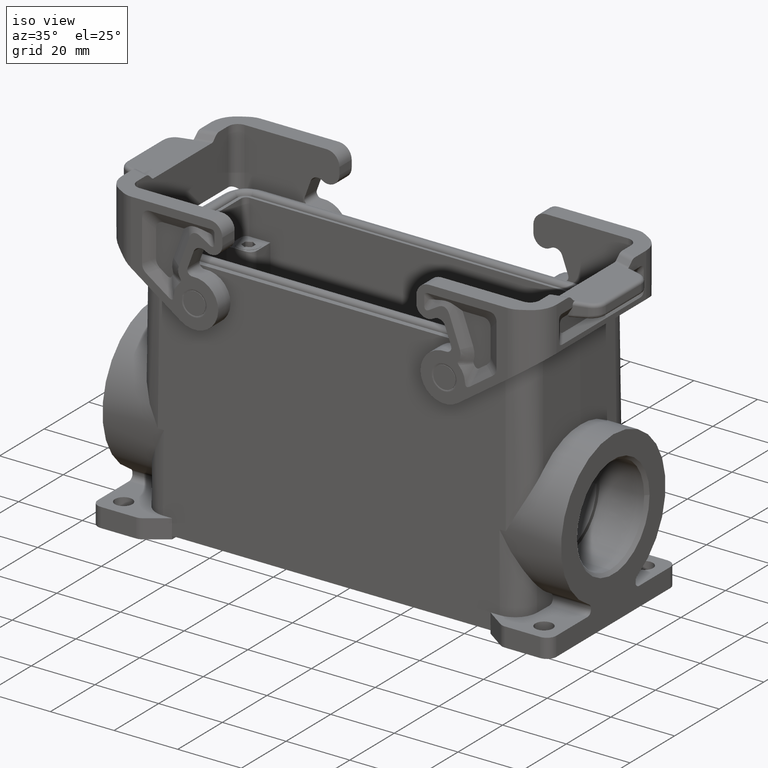
[diagram: clean part render]
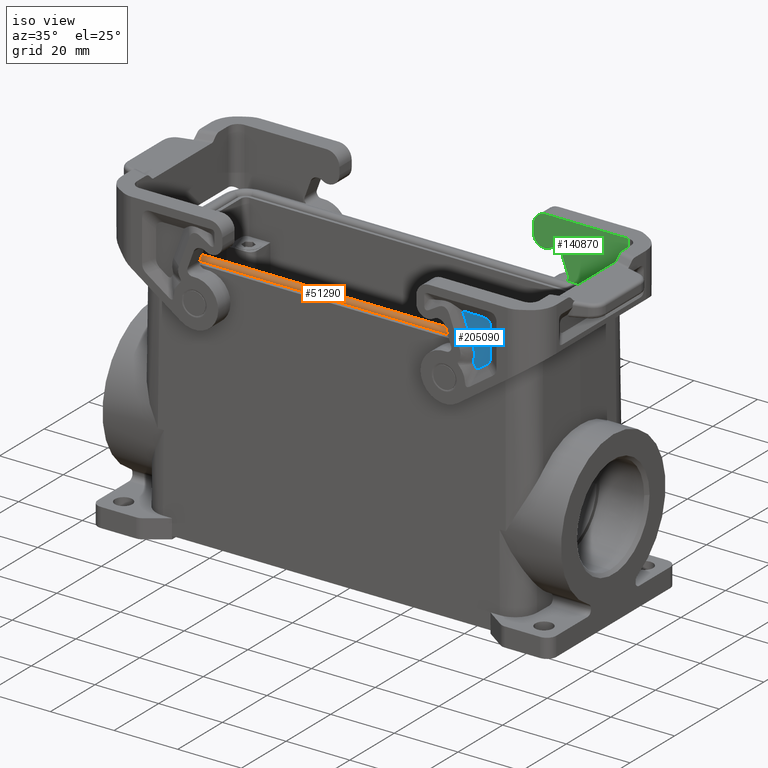
[diagram: same view with three faces highlighted in distinct colors, each labeled with its STEP entity id]
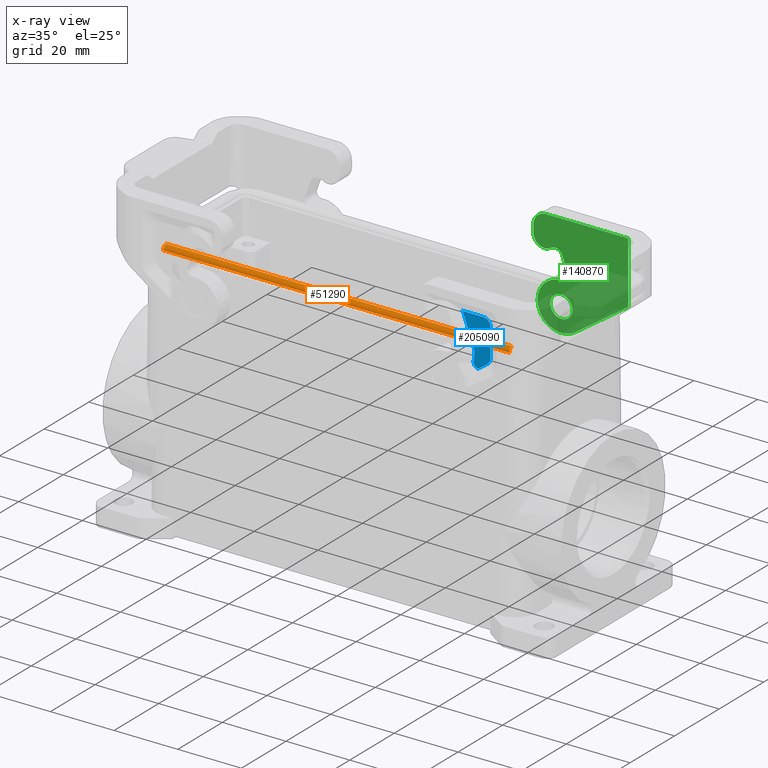
[diagram: x-ray of the same camera — body ghosted, the three highlighted faces saturated]
A machine part, iso view with three faces highlighted in distinct colors.
The next image is the same camera in x-ray (body ghosted, the three faces saturated) — at least one of them is partly hidden behind the body in this view.
Their STEP definitions:

[orange] entity #51290 — the highlighted cylindrical surface (edge-blend (fillet) strip) has radius 1.3 mm, axis along (1, 0, 0).
#28610=CARTESIAN_POINT('',(-80.6017367704239,23.600393,21.3818053607462)
);
#28620=VERTEX_POINT('',#28610);
#28650=CARTESIAN_POINT('',(101.662732982439,23.600393,21.3818053607462))
;
#28660=DIRECTION('',(1.,1.22464679914735E-16,0.));
#28670=VECTOR('',#28660,1.);
#28680=LINE('',#28650,#28670);
#28690=CARTESIAN_POINT('',(28.1087327353017,23.600393,21.3818053607462))
;
#28700=VERTEX_POINT('',#28690);
#28710=EDGE_CURVE('',#28620,#28700,#28680,.T.);
#48250=CARTESIAN_POINT('',(-80.6017367704239,24.950393,20.0827672550696)
);
#48260=VERTEX_POINT('',#48250);
#49270=CARTESIAN_POINT('',(28.1087327353017,24.950393,20.0827672550696))
;
#49280=VERTEX_POINT('',#49270);
#49310=CARTESIAN_POINT('',(101.662732982439,24.950393,20.0827672550696))
;
#49320=DIRECTION('',(1.,1.22464679914735E-16,0.));
#49330=VECTOR('',#49320,1.);
#49340=LINE('',#49310,#49330);
#49350=EDGE_CURVE('',#48260,#49280,#49340,.T.);
#49570=CARTESIAN_POINT('',(28.1087327353017,23.5936877964251,
21.381529943126));
#49580=CARTESIAN_POINT('',(28.1087327353017,24.3810726736339,
21.4159079092968));
#49590=CARTESIAN_POINT('',(28.1087327353017,24.950393,20.8709022621687))
;
#49600=CARTESIAN_POINT('',(28.1087327353017,24.950393,20.0827672550696))
;
#49610=(BOUNDED_CURVE() B_SPLINE_CURVE(3,(#49570,#49580,#49590,#49600),
.UNSPECIFIED.,.F.,.F.) B_SPLINE_CURVE_WITH_KNOTS((4,4),(0.,1.),
.UNSPECIFIED.) CURVE() GEOMETRIC_REPRESENTATION_ITEM() 
RATIONAL_B_SPLINE_CURVE((1.,0.79434203718818,0.79434203718818,1.)) 
REPRESENTATION_ITEM(''));
#49620=EDGE_CURVE('',#28700,#49280,#49610,.T.);
#51000=CARTESIAN_POINT('',(-80.6017367704239,23.5936877964251,
21.381529943126));
#51010=CARTESIAN_POINT('',(-80.6017367704239,24.3810726736339,
21.4159079092968));
#51020=CARTESIAN_POINT('',(-80.6017367704239,24.950393,20.8709022621687)
);
#51030=CARTESIAN_POINT('',(-80.6017367704239,24.950393,20.0827672550696)
);
#51040=(BOUNDED_CURVE() B_SPLINE_CURVE(3,(#51000,#51010,#51020,#51030),
.UNSPECIFIED.,.F.,.F.) B_SPLINE_CURVE_WITH_KNOTS((4,4),(0.,1.),
.UNSPECIFIED.) CURVE() GEOMETRIC_REPRESENTATION_ITEM() 
RATIONAL_B_SPLINE_CURVE((1.,0.79434203718818,0.79434203718818,1.)) 
REPRESENTATION_ITEM(''));
#51050=EDGE_CURVE('',#28620,#48260,#51040,.T.);
#51180=CARTESIAN_POINT('',(101.662732982439,23.650393,20.0827672550696))
;
#51190=DIRECTION('',(1.,1.22464679914735E-16,0.));
#51200=DIRECTION('',(0.,0.,1.));
#51210=AXIS2_PLACEMENT_3D('',#51180,#51190,#51200);
#51220=CYLINDRICAL_SURFACE('',#51210,1.3);
#51230=ORIENTED_EDGE('',*,*,#49620,.T.);
#51240=ORIENTED_EDGE('',*,*,#28710,.T.);
#51250=ORIENTED_EDGE('',*,*,#51050,.F.);
#51260=ORIENTED_EDGE('',*,*,#49350,.F.);
#51270=EDGE_LOOP('',(#51260,#51250,#51240,#51230));
#51280=FACE_OUTER_BOUND('',#51270,.T.);
#51290=ADVANCED_FACE('',(#51280),#51220,.T.);

[blue] entity #205090 — the highlighted planar face has unit normal (-0, -1, 0).
#187140=CARTESIAN_POINT('',(15.5938443089184,19.9084898675014,
29.8008727834341));
#187150=CARTESIAN_POINT('',(15.6503789052037,19.9121708330601,
29.7825039098034));
#187160=CARTESIAN_POINT('',(15.7065617675563,19.9162601629393,
29.763662419125));
#187170=CARTESIAN_POINT('',(15.8364997247724,19.9265704297103,
29.718891973554));
#187180=CARTESIAN_POINT('',(15.9099560919656,19.9330489657213,
29.6926719678815));
#187190=CARTESIAN_POINT('',(16.0571597904913,19.947094147338,
29.6385796512736));
#187200=CARTESIAN_POINT('',(16.1307760795123,19.9546677721177,
29.6107272897077));
#187210=CARTESIAN_POINT('',(16.2605784647074,19.9688137840444,
29.5604129132722));
#187220=CARTESIAN_POINT('',(16.3168127922858,19.9752113578485,
29.5382062990285));
#187230=CARTESIAN_POINT('',(16.4294400593955,19.9884867998585,
29.4930035389805));
#187240=CARTESIAN_POINT('',(16.4857748852946,19.9953631289619,
29.4700224160921));
#187250=CARTESIAN_POINT('',(16.5985449349942,20.0095344408756,
29.4233570090422));
#187260=CARTESIAN_POINT('',(16.6549492569245,20.0168295890853,
29.3996789574048));
#187270=CARTESIAN_POINT('',(16.7678439799504,20.0317880406663,
29.351683096087));
#187280=CARTESIAN_POINT('',(16.8243076406802,20.039450989125,
29.3273713038047));
#187290=CARTESIAN_POINT('',(16.9373186254284,20.0551019024929,
29.278160763381));
#187300=CARTESIAN_POINT('',(16.993842816066,20.0630892307593,
29.2532676158857));
#187310=CARTESIAN_POINT('',(17.1069558211753,20.0793487029835,
29.2029492313213));
#187320=CARTESIAN_POINT('',(17.1635247280813,20.0876199739821,
29.177529250399));
#187330=CARTESIAN_POINT('',(17.276719037452,20.1044131452302,
29.1262029048345));
#187340=CARTESIAN_POINT('',(17.3333272784265,20.1129340752719,
29.100301354865));
#187350=CARTESIAN_POINT('',(17.4465918455595,20.1301963957121,
29.0480535827174));
#187360=CARTESIAN_POINT('',(17.5032533382117,20.1389398907425,
29.0217023909422));
#187370=CARTESIAN_POINT('',(17.6114372246653,20.1558130073581,
28.9710195712663));
#187380=CARTESIAN_POINT('',(17.6630274816136,20.1639375342909,
28.9466882703352));
#187390=CARTESIAN_POINT('',(17.7254995058634,20.1738601705552,
28.9170437144651));
#187400=CARTESIAN_POINT('',(17.7364702410665,20.1756058551272,
28.9118310291946));
#187410=CARTESIAN_POINT('',(17.7584032931453,20.1791020522392,
28.9013963152634));
#187420=CARTESIAN_POINT('',(17.769365610021,20.1808525647793,
28.8961742866026));
#187430=CARTESIAN_POINT('',(17.7912818733948,20.1843582570011,
28.8857211128144));
#187440=CARTESIAN_POINT('',(17.8022358198931,20.1861134366829,
28.8804899676869));
#187450=CARTESIAN_POINT('',(17.8131899119192,20.1878715607514,
28.875252318539));
#187460=CARTESIAN_POINT('',(17.8131942186602,20.1878722519807,
28.8752502592895));
#187470=CARTESIAN_POINT('',(17.8131994280917,20.1878730880919,
28.8752477684212));
#187480=CARTESIAN_POINT('',(17.813200330783,20.1878732329734,
28.875247336803));
#187490=CARTESIAN_POINT('',(17.8132943955913,20.1878883303329,
28.8752023600913));
#187500=CARTESIAN_POINT('',(17.8133875574072,20.1879032829739,
28.875157814676));
#187510=CARTESIAN_POINT('',(17.815246140543,20.1882015931679,
28.8742691220033));
#187520=CARTESIAN_POINT('',(17.8187767674543,20.1887684250523,
28.8725805971));
#187530=CARTESIAN_POINT('',(17.822306962105,20.1893354897978,
28.8708916120356));
#187540=CARTESIAN_POINT('',(17.8276950688915,20.190201225643,
28.8683132207251));
#187550=CARTESIAN_POINT('',(17.8313177313689,20.1907836151282,
28.8665789537513));
#187560=CARTESIAN_POINT('',(17.8421852588012,20.1925316516359,
28.8613742847898));
#187570=CARTESIAN_POINT('',(17.8494287610663,20.1936980218259,
28.8579024463846));
#187580=CARTESIAN_POINT('',(17.8711581408452,20.1972006483527,
28.8474792209345));
#187590=CARTESIAN_POINT('',(17.8856385846184,20.1995397293618,
28.8405221829828));
#187600=CARTESIAN_POINT('',(18.0140643896087,20.2203268940845,
28.7787256673883));
#187610=CARTESIAN_POINT('',(18.1275523211527,20.2389904859733,
28.7234518811586));
#187620=CARTESIAN_POINT('',(18.2568272104585,20.2605073113662,
28.6598528586215));
#187630=CARTESIAN_POINT('',(18.2729319264447,20.2631924019214,
28.6519185297252));
#187640=CARTESIAN_POINT('',(18.297640703645,20.2673188278416,
28.6397282069309));
#187650=CARTESIAN_POINT('',(18.3062500237781,20.2687578748143,
28.6354775376597));
#187660=CARTESIAN_POINT('',(18.3593995352964,20.2776495090379,
28.6092167211262));
#187670=CARTESIAN_POINT('',(18.4038865818341,20.2851253555638,
28.5871519349499));
#187680=CARTESIAN_POINT('',(18.49276327054,20.3001211470866,
28.5429130925795));
#187690=CARTESIAN_POINT('',(18.5371529127082,20.3076410920834,
28.5207390363854));
#187700=CARTESIAN_POINT('',(18.6404417397926,20.3252020943445,
28.4689715405628));
#187710=CARTESIAN_POINT('',(18.6992969112978,20.3352565288284,
28.4393436029087));
#187720=CARTESIAN_POINT('',(18.7864515519312,20.3502083266881,
28.3952910906512));
#187730=CARTESIAN_POINT('',(18.8187715931372,20.3557642299053,
28.3789227338986));
#187740=CARTESIAN_POINT('',(18.8510798513524,20.3613301803997,
28.3625254300946));
#187750=CARTESIAN_POINT('',(18.8590119621885,20.3626970381948,
28.3584986333225));
#187760=CARTESIAN_POINT('',(18.8913063320302,20.368263371641,
28.3420999410744));
#187770=CARTESIAN_POINT('',(18.9235903115144,20.3738397105288,
28.3256721136427));
#187780=CARTESIAN_POINT('',(18.987360240158,20.3848740703229,
28.2931639360302));
#187790=CARTESIAN_POINT('',(19.0228087890803,20.3910213686418,
28.2750527632401));
#187800=CARTESIAN_POINT('',(19.0667589529649,20.3986583934988,
28.2525502157965));
#187810=CARTESIAN_POINT('',(19.0752814013654,20.4001400215987,
28.2481844790701));
#187820=CARTESIAN_POINT('',(19.0923238013464,20.4031042540955,
28.2394498776179));
#187830=CARTESIAN_POINT('',(19.1008437529272,20.4045868584923,
28.2350810128921));
#187840=CARTESIAN_POINT('',(19.1194874351745,20.4078326607962,
28.2255161334804));
#187850=CARTESIAN_POINT('',(19.1296106637828,20.4095960562272,
28.2203194781027));
#187860=CARTESIAN_POINT('',(19.2737549218414,20.4347185097777,
28.1462813658313));
#187870=CARTESIAN_POINT('',(19.4074416005962,20.4581853997086,
28.077082962662));
#187880=CARTESIAN_POINT('',(19.6748658948185,20.5053787549075,
27.937760691264));
#187890=CARTESIAN_POINT('',(19.8085694934442,20.5291004967704,
27.8676505523053));
#187900=CARTESIAN_POINT('',(20.0805379850057,20.5775473556577,
27.7242514341943));
#187910=CARTESIAN_POINT('',(20.2187640887585,20.6022729651842,
27.6509533201955));
#187920=CARTESIAN_POINT('',(20.4067969225491,20.6360127591314,
27.5507587230533));
#187930=CARTESIAN_POINT('',(20.5067303540463,20.65396463972,
27.4974148910444));
#187940=CARTESIAN_POINT('',(20.6065645679607,20.6719355673866,
27.4439461040074));
#187950=CARTESIAN_POINT('',(20.6733534710455,20.6839692054412,
27.4081191396911));
#187960=CARTESIAN_POINT('',(20.6902452025449,20.6870136128001,
27.3990532249853));
#187970=CARTESIAN_POINT('',(20.7285966058724,20.693927793425,
27.3784589721694));
#187980=CARTESIAN_POINT('',(20.7500547450716,20.6977978544996,
27.3669285387287));
#187990=CARTESIAN_POINT('',(20.9098915153111,20.7266355487633,
27.2809852632233));
#188000=CARTESIAN_POINT('',(21.0480983827638,20.7516295050146,
27.2063609116958));
#188010=CARTESIAN_POINT('',(21.3245066360075,20.8017046609869,
27.05657378712));
#188020=CARTESIAN_POINT('',(21.4626953853756,20.8267838181979,
26.9814166870613));
#188030=CARTESIAN_POINT('',(21.7390655735321,20.8770073172078,
26.8306306070855));
#188040=CARTESIAN_POINT('',(21.8772372055784,20.9021500416992,
26.755006092277));
#188050=CARTESIAN_POINT('',(22.1535644573142,20.9524824186973,
26.6033453312455));
#188060=CARTESIAN_POINT('',(22.2917124052393,20.9776707819536,
26.5273126430294));
#188070=CARTESIAN_POINT('',(22.5524606470288,21.0252476328063,
26.3834518554376));
#188080=CARTESIAN_POINT('',(22.6750754790004,21.0476349074594,
26.3156549401972));
#188090=CARTESIAN_POINT('',(22.7976255203723,21.0700214499229,
26.2477608642993));
#188100=CARTESIAN_POINT('',(15.5283387030263,20.4686983704234,
29.5411820310135));
#188110=CARTESIAN_POINT('',(15.5819156428012,20.4681406856572,
29.527588131611));
#188120=CARTESIAN_POINT('',(15.6354087840301,20.4679674774306,
29.513441966624));
#188130=CARTESIAN_POINT('',(15.7597873238098,20.4683500378506,
29.4793213799239));
#188140=CARTESIAN_POINT('',(15.8306384879911,20.4691667853763,
29.4589495564007));
#188150=CARTESIAN_POINT('',(15.9732242545007,20.4718956933648,
29.4162571853452));
#188160=CARTESIAN_POINT('',(16.0450023966126,20.4738143722338,
29.3938944865709));
#188170=CARTESIAN_POINT('',(16.1718538815342,20.4780856114718,
29.3529922068095));
#188180=CARTESIAN_POINT('',(16.2270795230862,20.4802287486896,
29.3347195165118));
#188190=CARTESIAN_POINT('',(16.3378636914403,20.48506804205,
29.2972040970354));
#188200=CARTESIAN_POINT('',(16.3934486423567,20.4877644775747,
29.2779440392859));
#188210=CARTESIAN_POINT('',(16.5049207928714,20.4936671516956,
29.2385149316162));
#188220=CARTESIAN_POINT('',(16.5608214909911,20.4968757718404,
29.2183335752954));
#188230=CARTESIAN_POINT('',(16.6728749428573,20.5037655876941,
29.1771286281072));
#188240=CARTESIAN_POINT('',(16.7290400901813,20.507448860728,
29.1560941656928));
#188250=CARTESIAN_POINT('',(16.8415894269448,20.5152531573229,
29.1132426739741));
#188260=CARTESIAN_POINT('',(16.8979847451935,20.5193760742062,
29.0914159995278));
#188270=CARTESIAN_POINT('',(17.0109495520004,20.5280257169521,
29.0470426932412));
#188280=CARTESIAN_POINT('',(17.0675289797623,20.5325540517104,
29.0244877204546));
#188290=CARTESIAN_POINT('',(17.1808320811251,20.5419832814188,
28.9787130521453));
#188300=CARTESIAN_POINT('',(17.2375645105106,20.5468855959009,
28.9554860976759));
#188310=CARTESIAN_POINT('',(17.3511469947114,20.5570336572326,
28.9084191710042));
#188320=CARTESIAN_POINT('',(17.4079952086494,20.5622816600067,
28.8845767884887));
#188330=CARTESIAN_POINT('',(17.5167760072845,20.5726105411839,
28.8384523319967));
#188340=CARTESIAN_POINT('',(17.5686434212511,20.5776646768907,
28.8162403335298));
#188350=CARTESIAN_POINT('',(17.6314859458224,20.5839326192796,
28.7890806029693));
#188360=CARTESIAN_POINT('',(17.642517424068,20.5850383082427,
28.7843036672827));
#188370=CARTESIAN_POINT('',(17.6645729305177,20.5872595474995,
28.7747347772355));
#188380=CARTESIAN_POINT('',(17.6755969934144,20.5883750988614,
28.7699428119955));
#188390=CARTESIAN_POINT('',(17.697637996489,20.590615887057,
28.7603440360142));
#188400=CARTESIAN_POINT('',(17.7086549707337,20.5917411250063,
28.755537214485));
#188410=CARTESIAN_POINT('',(17.7196757274623,20.5928718547318,
28.7507199177964));
#188420=CARTESIAN_POINT('',(17.7196800599316,20.592872299244,
28.7507180240239));
#188430=CARTESIAN_POINT('',(17.7196853008713,20.5928728369663,
28.750715733147));
#188440=CARTESIAN_POINT('',(17.7196862090223,20.592872930143,
28.7507153361834));
#188450=CARTESIAN_POINT('',(17.7197808461655,20.5928826399569,
28.7506739691548));
#188460=CARTESIAN_POINT('',(17.7198745764236,20.5928922572052,
28.7506329983895));
#188470=CARTESIAN_POINT('',(17.7217445306461,20.5930841344484,
28.7498156126686));
#188480=CARTESIAN_POINT('',(17.7252978612935,20.5934490856806,
28.7482622747406));
#188490=CARTESIAN_POINT('',(17.7288509006921,20.5938144614918,
28.7467082111003));
#188500=CARTESIAN_POINT('',(17.7342727843611,20.5943723791767,
28.7443355438022));
#188510=CARTESIAN_POINT('',(17.7379166506698,20.5947478337274,
28.7427393105889));
#188520=CARTESIAN_POINT('',(17.7488485537946,20.5958759857913,
28.7379483588785));
#188530=CARTESIAN_POINT('',(17.7561359870265,20.5966303786185,
28.7347517854466));
#188540=CARTESIAN_POINT('',(17.7780058611775,20.5989007621367,
28.7251469557809));
#188550=CARTESIAN_POINT('',(17.792591548882,20.6004235136799,
28.7187254814716));
#188560=CARTESIAN_POINT('',(17.9219585142873,20.6140051227747,
28.6616391252885));
#188570=CARTESIAN_POINT('',(18.0363515691301,20.6265433951559,
28.6102417442966));
#188580=CARTESIAN_POINT('',(18.1665147987152,20.6413197820418,
28.5508670399836));
#188590=CARTESIAN_POINT('',(18.1827287260392,20.6431694983533,
28.5434550767893));
#188600=CARTESIAN_POINT('',(18.2076285874059,20.6460234106336,
28.5320486353426));
#188610=CARTESIAN_POINT('',(18.2163088755415,20.6470207831645,
28.5280678193428));
#188620=CARTESIAN_POINT('',(18.2699019779384,20.653194075959,
28.5034627631053));
#188630=CARTESIAN_POINT('',(18.3147840503185,20.6584307562748,
28.4827397382569));
#188640=CARTESIAN_POINT('',(18.4044061089809,20.6690137184992,
28.4411331451722));
#188650=CARTESIAN_POINT('',(18.4491460952634,20.6743600004079,
28.4202495769359));
#188660=CARTESIAN_POINT('',(18.5532569281294,20.6869372295449,
28.3714097953021));
#188670=CARTESIAN_POINT('',(18.6125974145805,20.6942094110537,
28.3433876859224));
#188680=CARTESIAN_POINT('',(18.700435229025,20.705116276387,
28.3016721569148));
#188690=CARTESIAN_POINT('',(18.7330038621724,20.7091858788368,
28.2861624225316));
#188700=CARTESIAN_POINT('',(18.7655827572054,20.7132841192267,
28.2705883946325));
#188710=CARTESIAN_POINT('',(18.7735838089171,20.7142914230582,
28.2667617318775));
#188720=CARTESIAN_POINT('',(18.8061687116858,20.7183970738542,
28.2511698681627));
#188730=CARTESIAN_POINT('',(18.8387601881877,20.7225306375761,
28.2355173469692));
#188740=CARTESIAN_POINT('',(18.9031074160751,20.7307386443372,
28.2045561676367));
#188750=CARTESIAN_POINT('',(18.9388448927083,20.7353299764853,
28.1873206441474));
#188760=CARTESIAN_POINT('',(18.9831718520708,20.7410622812837,
28.1658606841823));
#188770=CARTESIAN_POINT('',(18.9917682327732,20.7421757018807,
28.1616951063504));
#188780=CARTESIAN_POINT('',(19.0089592988325,20.7444057935867,
28.1533576022568));
#188790=CARTESIAN_POINT('',(19.0175539841896,20.7455224646957,
28.149185675995));
#188800=CARTESIAN_POINT('',(19.036360850943,20.7479697537081,
28.1400500924342));
#188810=CARTESIAN_POINT('',(19.046572459736,20.7493010122703,
28.1350854712793));
#188820=CARTESIAN_POINT('',(19.1919730310951,20.7682905593734,
28.06433353931));
#188830=CARTESIAN_POINT('',(19.3268430657012,20.786324524523,
27.9979433071429));
#188840=CARTESIAN_POINT('',(19.5965791774993,20.8230976867758,
27.8638731672116));
#188850=CARTESIAN_POINT('',(19.7314430573826,20.8418394284254,
27.7961891465623));
#188860=CARTESIAN_POINT('',(20.0056864721446,20.8805613758197,
27.6574223272066));
#188870=CARTESIAN_POINT('',(20.1450469684719,20.9005617057374,
27.5863068739016));
#188880=CARTESIAN_POINT('',(20.3346138694732,20.9281400318683,
27.4888732713977));
#188890=CARTESIAN_POINT('',(20.4353660058674,20.942869386206,
27.436954090535));
#188900=CARTESIAN_POINT('',(20.5359569141189,20.9577109874922,
27.3848623540697));
#188910=CARTESIAN_POINT('',(20.6032593640346,20.9676840271859,
27.34992825909));
#188920=CARTESIAN_POINT('',(20.6202816050284,20.9702101044138,
27.3410857305868));
#188930=CARTESIAN_POINT('',(20.6589275654445,20.975953302686,
27.3209948821429));
#188940=CARTESIAN_POINT('',(20.6805501444145,20.9791724707729,
27.3097429699058));
#188950=CARTESIAN_POINT('',(20.8415385063125,21.0031826606992,
27.2258882991683));
#188960=CARTESIAN_POINT('',(20.9807792955514,21.0241850262546,
27.1529144982437));
#188970=CARTESIAN_POINT('',(21.2591748145334,21.0665822956481,
27.006237300619));
#188980=CARTESIAN_POINT('',(21.3983345292889,21.0879782953127,
26.9325296814096));
#188990=CARTESIAN_POINT('',(21.6765719090556,21.1311092955702,
26.7844795202336));
#189000=CARTESIAN_POINT('',(21.8156532488153,21.1528451333809,
26.710133818623));
#189010=CARTESIAN_POINT('',(22.0937309661757,21.1966100266266,
26.5608909394831));
#189020=CARTESIAN_POINT('',(22.2327300930917,21.2186397119534,
26.4859913999684));
#189030=CARTESIAN_POINT('',(22.4950341065253,21.2604651411743,
26.3441512322966));
#189040=CARTESIAN_POINT('',(22.6183574585354,21.2802354786959,
26.2772560328704));
#189050=CARTESIAN_POINT('',(22.7416227676208,21.3000910348764,
26.210205153208));
#189060=CARTESIAN_POINT('',(15.5376359067284,21.0895589935669,
29.5411758618925));
#189070=CARTESIAN_POINT('',(15.5883991158208,21.0835374940161,
29.5275781989544));
#189080=CARTESIAN_POINT('',(15.6392515062593,21.0779055868836,
29.5134375226708));
#189090=CARTESIAN_POINT('',(15.7578944561268,21.0656644397853,
29.4793273070433));
#189100=CARTESIAN_POINT('',(15.8258320143774,21.0593404323747,
29.4589445445579));
#189110=CARTESIAN_POINT('',(15.9629814231807,21.0478923870809,
29.416262012101));
#189120=CARTESIAN_POINT('',(16.0323346864019,21.0427758847585,
29.3938865921335));
#189130=CARTESIAN_POINT('',(16.1552014182364,21.0348354640552,
29.3529981372959));
#189140=CARTESIAN_POINT('',(16.2088569719369,21.0317404593445,
29.3347180492947));
#189150=CARTESIAN_POINT('',(16.3166781301201,21.0262364880016,
29.297205504053));
#189160=CARTESIAN_POINT('',(16.3709029648401,21.0238292195729,
29.2779428772018));
#189170=CARTESIAN_POINT('',(16.4798317238217,21.0196741904686,
29.2385160723878));
#189180=CARTESIAN_POINT('',(16.5345672149089,21.0179306939671,
29.2183326419544));
#189190=CARTESIAN_POINT('',(16.6444482820145,21.0150776728051,
29.1771295448173));
#189200=CARTESIAN_POINT('',(16.6996202851822,21.0139720460327,
29.1560934222996));
#189210=CARTESIAN_POINT('',(16.8103235454144,21.0123659433092,
29.1132434046398));
#189220=CARTESIAN_POINT('',(16.8658768117836,21.011869089284,
29.0914154090456));
#189230=CARTESIAN_POINT('',(16.9772816077743,21.0114504171317,
29.047043273884));
#189240=CARTESIAN_POINT('',(17.0331514577298,21.0115317455773,
29.0244872540224));
#189250=CARTESIAN_POINT('',(17.145144640421,21.0122383053242,
28.9787135110503));
#189260=CARTESIAN_POINT('',(17.201283186363,21.0128663269356,
28.9554857302559));
#189270=CARTESIAN_POINT('',(17.3137737007273,21.0146352296475,
28.9084195467231));
#189280=CARTESIAN_POINT('',(17.3701242269748,21.0157795244461,
28.8845790262431));
#189290=CARTESIAN_POINT('',(17.4780516037808,21.0184237992494,
28.8384503086452));
#189300=CARTESIAN_POINT('',(17.5295460689552,21.0198860970469,
28.8162378328194));
#189310=CARTESIAN_POINT('',(17.5919744680977,21.0218862312844,
28.7890783646126));
#189320=CARTESIAN_POINT('',(17.6029346629401,21.0222458892895,
28.7843015064541));
#189330=CARTESIAN_POINT('',(17.6248504205958,21.022981806395,
28.7747328176861));
#189340=CARTESIAN_POINT('',(17.6358060172486,21.0233580628012,
28.7699409761868));
#189350=CARTESIAN_POINT('',(17.6577128457666,21.0241269158155,
28.7603424772117));
#189360=CARTESIAN_POINT('',(17.6686641108789,21.0245195098704,
28.7555358089418));
#189370=CARTESIAN_POINT('',(17.6796204655171,21.0249204051777,
28.7507186720416));
#189380=CARTESIAN_POINT('',(17.6796247726689,21.0249205627786,
28.7507167783319));
#189390=CARTESIAN_POINT('',(17.6796299829825,21.0249207534281,
28.750714487531));
#189400=CARTESIAN_POINT('',(17.6796308858266,21.0249207864639,
28.7507140905806));
#189410=CARTESIAN_POINT('',(17.6797249699452,21.0249242290874,
28.7506727249241));
#189420=CARTESIAN_POINT('',(17.6798181518795,21.0249276392826,
28.750631755519));
#189430=CARTESIAN_POINT('',(17.6816771555631,21.0249956852176,
28.7498143969627));
#189440=CARTESIAN_POINT('',(17.6852092719321,21.0251253926011,
28.7482611116596));
#189450=CARTESIAN_POINT('',(17.6887411853165,21.0252561064784,
28.7467071304032));
#189460=CARTESIAN_POINT('',(17.6941316090561,21.0254561468919,
28.7443345798981));
#189470=CARTESIAN_POINT('',(17.6977554064493,21.025591378548,
28.7427384128567));
#189480=CARTESIAN_POINT('',(17.7086264922327,21.0259997385031,
28.737947643398));
#189490=CARTESIAN_POINT('',(17.7158725712919,21.02627549876,
28.7347511697614));
#189500=CARTESIAN_POINT('',(17.7376206976439,21.0271139976168,
28.725146762096));
#189510=CARTESIAN_POINT('',(17.7521283324002,21.0276877970363,
28.7187257326197));
#189520=CARTESIAN_POINT('',(17.8808222132051,21.0328987532666,
28.6616427045827));
#189530=CARTESIAN_POINT('',(17.994754293891,21.0383569375921,
28.6102439523267));
#189540=CARTESIAN_POINT('',(18.1245061413366,21.0453999044374,
28.5508682121901));
#189550=CARTESIAN_POINT('',(18.1406708401941,21.0462920485824,
28.5434561293118));
#189560=CARTESIAN_POINT('',(18.1654978992271,21.0476855364164,
28.532049672447));
#189570=CARTESIAN_POINT('',(18.1741533293485,21.0481756806436,
28.5280688824505));
#189580=CARTESIAN_POINT('',(18.2275966063382,21.0512276648738,
28.5034639748477));
#189590=CARTESIAN_POINT('',(18.272369041511,21.0538953874995,
28.4827410228041));
#189600=CARTESIAN_POINT('',(18.3617904283682,21.059430496732,
28.4411347297975));
#189610=CARTESIAN_POINT('',(18.4064393800526,21.0622978833388,
28.4202513888346));
#189620=CARTESIAN_POINT('',(18.5103660995017,21.0692014776062,
28.3714112405969));
#189630=CARTESIAN_POINT('',(18.5696226929973,21.0733117998201,
28.3433882425017));
#189640=CARTESIAN_POINT('',(18.6573874004736,21.0796350859461,
28.301671740645));
#189650=CARTESIAN_POINT('',(18.6899380911698,21.0820225354053,
28.2861617070306));
#189660=CARTESIAN_POINT('',(18.7224885325153,21.0844599578927,
28.2705876603861));
#189670=CARTESIAN_POINT('',(18.7304821913024,21.0850600490425,
28.2667610023702));
#189680=CARTESIAN_POINT('',(18.763035335899,21.0875100146083,
28.2511691960188));
#189690=CARTESIAN_POINT('',(18.795586625344,21.090009088855,
28.2355169697459));
#189700=CARTESIAN_POINT('',(18.8599019633883,21.0950197694934,
28.204555888661));
#189710=CARTESIAN_POINT('',(18.8956548631145,21.0978561211845,
28.187320081766));
#189720=CARTESIAN_POINT('',(18.9399843257223,21.1014408298188,
28.1658604122156));
#189730=CARTESIAN_POINT('',(18.94858041587,21.1021391270029,
28.1616949206649));
#189740=CARTESIAN_POINT('',(18.9657703793252,21.1035417230723,
28.1533574910147));
#189750=CARTESIAN_POINT('',(18.9743642526327,21.1042460219576,
28.1491855529152));
#189760=CARTESIAN_POINT('',(18.9931701550302,21.1057937143866,
28.1400499929936));
#189770=CARTESIAN_POINT('',(19.0033817647815,21.1066382955529,
28.1350854166577));
#189780=CARTESIAN_POINT('',(19.1487874299011,21.1187234682358,
28.0643340493141));
#189790=CARTESIAN_POINT('',(19.2837247445331,21.1306646977753,
27.9979434353047));
#189800=CARTESIAN_POINT('',(19.5536824874755,21.1557974139441,
27.863873030904));
#189810=CARTESIAN_POINT('',(19.6887010675624,21.1689937355896,
27.7961891296415));
#189820=CARTESIAN_POINT('',(19.9633196644435,21.1969286644661,
27.6574224066868));
#189830=CARTESIAN_POINT('',(20.1029028795229,21.2117064226904,
27.586306924924));
#189840=CARTESIAN_POINT('',(20.2928013291292,21.2324886633042,
27.4888733057227));
#189850=CARTESIAN_POINT('',(20.3937351932169,21.2436653909985,
27.4369541202309));
#189860=CARTESIAN_POINT('',(20.4945171476184,21.2550739279817,
27.3848623564793));
#189870=CARTESIAN_POINT('',(20.5619501122196,21.2627862659633,
27.3499282526363));
#189880=CARTESIAN_POINT('',(20.5790055937756,21.2647436698265,
27.3410857226962));
#189890=CARTESIAN_POINT('',(20.6177275102336,21.2692027336814,
27.3209948741414));
#189900=CARTESIAN_POINT('',(20.6393929348471,21.2717083558536,
27.3097429640833));
#189910=CARTESIAN_POINT('',(20.8007026590266,21.2904418655021,
27.2258883351646));
#189920=CARTESIAN_POINT('',(20.9402348590345,21.3070816532107,
27.1529144806442));
#189930=CARTESIAN_POINT('',(21.2192284107356,21.3411108234687,
27.0062373181662));
#189940=CARTESIAN_POINT('',(21.3586948807704,21.358502026849,
26.9325296738362));
#189950=CARTESIAN_POINT('',(21.6375531577504,21.3939406245053,
26.7844795278982));
#189960=CARTESIAN_POINT('',(21.7769486712255,21.4119894058342,
26.7101338161465));
#189970=CARTESIAN_POINT('',(22.0556565124738,21.4486630162937,
26.5608909420939));
#189980=CARTESIAN_POINT('',(22.1949715737564,21.4672888817528,
26.4859913999714));
#189990=CARTESIAN_POINT('',(22.4578698908284,21.5029277271937,
26.3441512324294));
#190000=CARTESIAN_POINT('',(22.5814718354563,21.5198885495717,
26.2772560337256));
#190010=CARTESIAN_POINT('',(22.7050138257546,21.5370256936231,
26.2102051536545));
#190020=CARTESIAN_POINT('',(15.6199191275575,21.6475662257597,
29.8008494488392));
#190030=CARTESIAN_POINT('',(15.668602418478,21.6379431461744,
29.7824683487128));
#190040=CARTESIAN_POINT('',(15.7173507181846,21.6286724410115,
29.7636535265236));
#190050=CARTESIAN_POINT('',(15.8312033779737,21.6079029786424,
29.7189037944294));
#190060=CARTESIAN_POINT('',(15.896410267987,21.5966763262221,
29.6926609813371));
#190070=CARTESIAN_POINT('',(16.0282259668394,21.5753360518497,
29.6385908360181));
#190080=CARTESIAN_POINT('',(16.0949464723123,21.5652284636108,
29.6106985505796));
#190090=CARTESIAN_POINT('',(16.2133207042628,21.5484926372533,
29.5604351276389));
#190100=CARTESIAN_POINT('',(16.2650629610129,21.5415797579134,
29.5382022672357));
#190110=CARTESIAN_POINT('',(16.3691584131688,21.5284549015538,
29.4930076142482));
#190120=CARTESIAN_POINT('',(16.4215626148701,21.5222444771073,
29.4700187859851));
#190130=CARTESIAN_POINT('',(16.5269552555617,21.5105187512524,
29.4233606744015));
#190140=CARTESIAN_POINT('',(16.5799696841254,21.5050078817064,
29.3996757140493));
#190150=CARTESIAN_POINT('',(16.6865159819476,21.4946730883251,
29.3516863676421));
#190160=CARTESIAN_POINT('',(16.7400703544651,21.4898533461134,
29.3273684289857));
#190170=CARTESIAN_POINT('',(16.8476450334932,21.4808851254048,
29.2781636610974));
#190180=CARTESIAN_POINT('',(16.9016847644401,21.4767406511316,
29.253265068695));
#190190=CARTESIAN_POINT('',(17.0101671119145,21.4691040917426,
29.2029517963674));
#190200=CARTESIAN_POINT('',(17.0646264802133,21.4656155754223,
29.1775270050375));
#190210=CARTESIAN_POINT('',(17.1738996120884,21.4592677191349,
29.1262051643693));
#190220=CARTESIAN_POINT('',(17.2287278109778,21.4564116254353,
29.1002993785647));
#190230=CARTESIAN_POINT('',(17.3386940152286,21.4513032932153,
29.0480555702199));
#190240=CARTESIAN_POINT('',(17.3938250196595,21.4490546597102,
29.0217193354058));
#190250=CARTESIAN_POINT('',(17.4994554959527,21.4453084605546,
28.9710040699887));
#190260=CARTESIAN_POINT('',(17.5499088428498,21.4437644807115,
28.9466691194476));
#190270=CARTESIAN_POINT('',(17.6111039208113,21.4421729778487,
28.9170265574337));
#190280=CARTESIAN_POINT('',(17.6218541531246,21.4419039260569,
28.9118144628539));
#190290=CARTESIAN_POINT('',(17.6433538816503,21.4413866374773,
28.9013812841628));
#190300=CARTESIAN_POINT('',(17.6541033778626,21.4411384006895,
28.8961602000516));
#190310=CARTESIAN_POINT('',(17.6756017070729,21.4406624762144,
28.8857091422529));
#190320=CARTESIAN_POINT('',(17.6863505400709,21.4404347885271,
28.8804791685655));
#190330=CARTESIAN_POINT('',(17.6971033054925,21.4402171568737,
28.8752427412991));
#190340=CARTESIAN_POINT('',(17.6971075330799,21.4402170713106,
28.87524068253));
#190350=CARTESIAN_POINT('',(17.6971126467681,21.4402169678154,
28.8752381922427));
#190360=CARTESIAN_POINT('',(17.697113532869,21.4402169498818,
28.8752377607252));
#190370=CARTESIAN_POINT('',(17.6972058688796,21.4402150811208,
28.8751927945065));
#190380=CARTESIAN_POINT('',(17.697297318768,21.4402132310276,
28.8751482594871));
#190390=CARTESIAN_POINT('',(17.6991217543334,21.4401763360945,
28.8742597742841));
#190400=CARTESIAN_POINT('',(17.7025877104017,21.4401067721485,
28.8725716460894));
#190410=CARTESIAN_POINT('',(17.7060536364237,21.4400382603771,
28.870883061805));
#190420=CARTESIAN_POINT('',(17.7113439516618,21.4399344863435,
28.8683052845341));
#190430=CARTESIAN_POINT('',(17.7149012802386,21.4398658117917,
28.8665714336258));
#190440=CARTESIAN_POINT('',(17.7255740629752,21.4396630750917,
28.8613680155639));
#190450=CARTESIAN_POINT('',(17.7326894280419,21.4395323178282,
28.8578970145924));
#190460=CARTESIAN_POINT('',(17.754039425925,21.4391530736632,
28.8474762570714));
#190470=CARTESIAN_POINT('',(17.7682737338624,21.4389176998588,
28.8405208047194));
#190480=CARTESIAN_POINT('',(17.8945761857348,21.4369815239997,
28.7787365188947));
#190490=CARTESIAN_POINT('',(18.0066382230651,21.4363286247875,
28.7234435552247));
#190500=CARTESIAN_POINT('',(18.1345561020682,21.4366512525864,
28.659854044091));
#190510=CARTESIAN_POINT('',(18.1504985928256,21.4367104271071,
28.6519204360425));
#190520=CARTESIAN_POINT('',(18.1749682405393,21.4368298611381,
28.6397306999327));
#190530=CARTESIAN_POINT('',(18.1834960619726,21.4368768188408,
28.6354801382205));
#190540=CARTESIAN_POINT('',(18.2361532503701,21.4371994009165,
28.609219506546));
#190550=CARTESIAN_POINT('',(18.2802750981936,21.437611212432,
28.5871527965507));
#190560=CARTESIAN_POINT('',(18.3684961699715,21.4387038333089,
28.5429112952758));
#190570=CARTESIAN_POINT('',(18.4125953939259,21.4393846426703,
28.5207365039963));
#190580=CARTESIAN_POINT('',(18.515271595128,21.4412673267522,
28.468974906316));
#190590=CARTESIAN_POINT('',(18.5738481471143,21.4425671668909,
28.4393448121507));
#190600=CARTESIAN_POINT('',(18.6606657650349,21.4448076291545,
28.3952896157002));
#190610=CARTESIAN_POINT('',(18.69288351758,21.445695351216,
28.3789157261774));
#190620=CARTESIAN_POINT('',(18.7250851222885,21.4466446744655,
28.3625224751425));
#190630=CARTESIAN_POINT('',(18.7329932574215,21.446879658297,
28.3584957561302));
#190640=CARTESIAN_POINT('',(18.765198548295,21.447844116062,
28.3420938715261));
#190650=CARTESIAN_POINT('',(18.7973865732038,21.4488694871752,
28.3256735095965));
#190660=CARTESIAN_POINT('',(18.8610232558217,21.4510005065613,
28.2931633510337));
#190670=CARTESIAN_POINT('',(18.8964137139837,21.4522578429696,
28.2750510996155));
#190680=CARTESIAN_POINT('',(18.9403075552343,21.4539033255407,
28.2525483909038));
#190690=CARTESIAN_POINT('',(18.9488198150858,21.4542264472651,
28.248182677817));
#190700=CARTESIAN_POINT('',(18.9658432143964,21.454880600905,
28.2394482592542));
#190710=CARTESIAN_POINT('',(18.9743543538555,21.4552116328204,
28.2350795537782));
#190720=CARTESIAN_POINT('',(18.9929801547695,21.4559446802475,
28.2255151994947));
#190730=CARTESIAN_POINT('',(19.0030945789742,21.4563483111355,
28.2203189432939));
#190740=CARTESIAN_POINT('',(19.1471252493315,21.4621743277126,
28.146288447398));
#190750=CARTESIAN_POINT('',(19.2809365123567,21.4685507668954,
28.0770776318825));
#190760=CARTESIAN_POINT('',(19.5488100045354,21.4829864540075,
27.9377660434822));
#190770=CARTESIAN_POINT('',(19.6829007692915,21.4910541574017,
27.8676472609769));
#190780=CARTESIAN_POINT('',(19.9558011261624,21.5089628761723,
27.7242548481928));
#190790=CARTESIAN_POINT('',(20.0946214359118,21.5188602655431,
27.6509498904689));
#190800=CARTESIAN_POINT('',(20.2835281281438,21.5332602926661,
27.5507599652027));
#190810=CARTESIAN_POINT('',(20.383948455704,21.5410948179147,
27.4974161340719));
#190820=CARTESIAN_POINT('',(20.4843030108047,21.5492669899445,
27.443945818272));
#190830=CARTESIAN_POINT('',(20.5514476936125,21.5548439971911,
27.4081184691195));
#190840=CARTESIAN_POINT('',(20.5684300635955,21.5562639025219,
27.3990525117445));
#190850=CARTESIAN_POINT('',(20.6069885046425,21.5595086788558,
27.378458361941));
#190860=CARTESIAN_POINT('',(20.6285633732689,21.5613391038116,
27.3669281283078));
#190870=CARTESIAN_POINT('',(20.7892746207762,21.5750821472681,
27.2809879104816));
#190880=CARTESIAN_POINT('',(20.9282957867443,21.5875748852526,
27.2063588594867));
#190890=CARTESIAN_POINT('',(21.2063615682935,21.6136233085509,
27.0565758433236));
#190900=CARTESIAN_POINT('',(21.3454168588655,21.6271821970298,
26.9814150791333));
#190910=CARTESIAN_POINT('',(21.6235300602663,21.655238898603,
26.8306322176979));
#190920=CARTESIAN_POINT('',(21.7625962511401,21.6697392284752,
26.7550048214562));
#190930=CARTESIAN_POINT('',(22.0407089758689,21.6995714383277,
26.603346603829));
#190940=CARTESIAN_POINT('',(22.1797620058043,21.714905265649,
26.5273116311045));
#190950=CARTESIAN_POINT('',(22.4422062315834,21.7445469659898,
26.3834527547368));
#190960=CARTESIAN_POINT('',(22.5656222969479,21.7587796189776,
26.3156545026463));
#190970=CARTESIAN_POINT('',(22.6889667053383,21.7732691734584,
26.2477606827695));
#190980=(BOUNDED_SURFACE() B_SPLINE_SURFACE(3,3,((#187140,#188100,
#189060,#190020),(#187150,#188110,#189070,#190030),(#187160,#188120,
#189080,#190040),(#187170,#188130,#189090,#190050),(#187180,#188140,
#189100,#190060),(#187190,#188150,#189110,#190070),(#187200,#188160,
#189120,#190080),(#187210,#188170,#189130,#190090),(#187220,#188180,
#189140,#190100),(#187230,#188190,#189150,#190110),(#187240,#188200,
#189160,#190120),(#187250,#188210,#189170,#190130),(#187260,#188220,
#189180,#190140),(#187270,#188230,#189190,#190150),(#187280,#188240,
#189200,#190160),(#187290,#188250,#189210,#190170),(#187300,#188260,
#189220,#190180),(#187310,#188270,#189230,#190190),(#187320,#188280,
#189240,#190200),(#187330,#188290,#189250,#190210),(#187340,#188300,
#189260,#190220),(#187350,#188310,#189270,#190230),(#187360,#188320,
#189280,#190240),(#187370,#188330,#189290,#190250),(#187380,#188340,
#189300,#190260),(#187390,#188350,#189310,#190270),(#187400,#188360,
#189320,#190280),(#187410,#188370,#189330,#190290),(#187420,#188380,
#189340,#190300),(#187430,#188390,#189350,#190310),(#187440,#188400,
#189360,#190320),(#187450,#188410,#189370,#190330),(#187460,#188420,
#189380,#190340),(#187470,#188430,#189390,#190350),(#187480,#188440,
#189400,#190360),(#187490,#188450,#189410,#190370),(#187500,#188460,
#189420,#190380),(#187510,#188470,#189430,#190390),(#187520,#188480,
#189440,#190400),(#187530,#188490,#189450,#190410),(#187540,#188500,
#189460,#190420),(#187550,#188510,#189470,#190430),(#187560,#188520,
#189480,#190440),(#187570,#188530,#189490,#190450),(#187580,#188540,
#189500,#190460),(#187590,#188550,#189510,#190470),(#187600,#188560,
#189520,#190480),(#187610,#188570,#189530,#190490),(#187620,#188580,
#189540,#190500),(#187630,#188590,#189550,#190510),(#187640,#188600,
#189560,#190520),(#187650,#188610,#189570,#190530),(#187660,#188620,
#189580,#190540),(#187670,#188630,#189590,#190550),(#187680,#188640,
#189600,#190560),(#187690,#188650,#189610,#190570),(#187700,#188660,
#189620,#190580),(#187710,#188670,#189630,#190590),(#187720,#188680,
#189640,#190600),(#187730,#188690,#189650,#190610),(#187740,#188700,
#189660,#190620),(#187750,#188710,#189670,#190630),(#187760,#188720,
#189680,#190640),(#187770,#188730,#189690,#190650),(#187780,#188740,
#189700,#190660),(#187790,#188750,#189710,#190670),(#187800,#188760,
#189720,#190680),(#187810,#188770,#189730,#190690),(#187820,#188780,
#189740,#190700),(#187830,#188790,#189750,#190710),(#187840,#188800,
#189760,#190720),(#187850,#188810,#189770,#190730),(#187860,#188820,
#189780,#190740),(#187870,#188830,#189790,#190750),(#187880,#188840,
#189800,#190760),(#187890,#188850,#189810,#190770),(#187900,#188860,
#189820,#190780),(#187910,#188870,#189830,#190790),(#187920,#188880,
#189840,#190800),(#187930,#188890,#189850,#190810),(#187940,#188900,
#189860,#190820),(#187950,#188910,#189870,#190830),(#187960,#188920,
#189880,#190840),(#187970,#188930,#189890,#190850),(#187980,#188940,
#189900,#190860),(#187990,#188950,#189910,#190870),(#188000,#188960,
#189920,#190880),(#188010,#188970,#189930,#190890),(#188020,#188980,
#189940,#190900),(#188030,#188990,#189950,#190910),(#188040,#189000,
#189960,#190920),(#188050,#189010,#189970,#190930),(#188060,#189020,
#189980,#190940),(#188070,#189030,#189990,#190950),(#188080,#189040,
#190000,#190960),(#188090,#189050,#190010,#190970)),.UNSPECIFIED.,.F.,
.F.,.F.) B_SPLINE_SURFACE_WITH_KNOTS((4,2,2,2,2,2,2,2,2,2,2,2,2,2,2,2,2,
2,2,1,2,2,2,2,2,2,2,2,2,2,1,2,1,2,2,2,2,2,2,2,2,1,2,2,2,2,2,2,2,4),(4,4)
,(0.,0.16842455221342,0.392310181833698,0.620234765083994,
0.796412700787833,0.974490367614028,1.15429736147401,1.33566769650789,
1.51848261796246,1.70257904904153,1.88783754462275,2.07414614024951,
2.2445865483098,2.28091052935473,2.31723451039966,2.35355849144478,
2.35357277830016,2.35357577282015,2.35388482182061,2.35974133660205,
2.36559785138349,2.37761992994684,2.40166708159351,2.44977567174223,
2.82854990959099,2.88248083381271,2.91133169044895,3.06063383171687,
3.20993597298478,3.40837073888284,3.50415140689454,3.51755777914292,
3.53096520582701,3.62675340716355,3.74683295253839,3.77572452576424,
3.80461609899009,3.83895519509928,4.29364960454927,4.75017265677741,
5.22371064879883,5.39521263572338,5.56671462264792,5.6247852122187,
5.69857897944051,6.1745565681342,6.65146059918784,7.1291608136026,
7.60752365397592,8.03264541743474),(0.,1.),.UNSPECIFIED.) 
GEOMETRIC_REPRESENTATION_ITEM() RATIONAL_B_SPLINE_SURFACE(((1.,
0.933678885276795,0.933678885276795,1.),(1.,0.934758840750429,
0.934758840750429,1.),(1.,0.935823334041681,0.935823334041681,1.),(1.,
0.938256527802133,0.938256527802133,1.),(1.,0.939610262961431,
0.939610262961431,1.),(1.,0.942258372964238,0.942258372964238,1.),(1.,
0.94355202648228,0.94355202648228,1.),(1.,0.945765175832653,
0.945765175832653,1.),(1.,0.946703593325225,0.946703593325225,1.),(1.,
0.948536293579522,0.948536293579522,1.),(1.,0.949430274555113,
0.949430274555113,1.),(1.,0.951173006426322,0.951173006426322,1.),(1.,
0.952021364914119,0.952021364914119,1.),(1.,0.953672597673917,
0.953672597673917,1.),(1.,0.95447511477308,0.95447511477308,1.),(1.,
0.956035393994244,0.956035393994244,1.),(1.,0.95679282831719,
0.95679282831719,1.),(1.,0.958264007370542,0.958264007370542,1.),(1.,
0.958977470352279,0.958977470352279,1.),(1.,0.960362331466863,
0.960362331466863,1.),(1.,0.961033483441225,0.961033483441225,1.),(1.,
0.962335568636387,0.962335568636387,1.),(1.,0.962966264282844,
0.962966264282844,1.),(1.,0.964134590027316,0.964134590027316,1.),(1.,
0.964675503787331,0.964675503787331,1.),(1.,0.96531211447856,
0.96531211447856,1.),(1.,0.965423219909379,0.965423219909379,1.),(1.,
0.965643986240635,0.965643986240635,1.),(1.,0.965753647141071,
0.965753647141071,1.),(1.,0.965971546169957,0.965971546169957,1.),(1.,
0.966079784298406,0.966079784298406,1.),(1.,0.966187364216482,
0.966187364216482,1.),(1.,0.966187406512796,0.966187406512796,1.),(1.,
0.966187457674272,0.966187457674272,1.),(1.,0.966187466539537,
0.966187466539537,1.),(1.,0.966188390342734,0.966188390342734,1.),(1.,
0.966189305227457,0.966189305227457,1.),(1.,0.966207556230746,
0.966207556230746,1.),(1.,0.96624219062317,0.96624219062317,1.),(1.,
0.96627699977117,0.96627699977117,1.),(1.,0.966329853169601,
0.966329853169601,1.),(1.,0.966365008518497,0.966365008518497,1.),(1.,
0.96647052795205,0.96647052795205,1.),(1.,0.966540936678017,
0.966540936678017,1.),(1.,0.966751212227502,0.966751212227502,1.),(1.,
0.966890086001845,0.966890086001845,1.),(1.,0.968111849981188,
0.968111849981188,1.),(1.,0.969122520799105,0.969122520799105,1.),(1.,
0.970204612084229,0.970204612084229,1.),(1.,0.970338194055651,
0.970338194055651,1.),(1.,0.970541451430187,0.970541451430187,1.),(1.,
0.970611957178376,0.970611957178376,1.),(1.,0.971045285466556,
0.971045285466556,1.),(1.,0.971399582058644,0.971399582058644,1.),(1.,
0.972087818563637,0.972087818563637,1.),(1.,0.972421758476542,
0.972421758476542,1.),(1.,0.973179935351378,0.973179935351378,1.),(1.,
0.973597723455998,0.973597723455998,1.),(1.,0.97420711710693,
0.97420711710693,1.),(1.,0.974431469994726,0.974431469994726,1.),(1.,
0.974646264806925,0.974646264806925,1.),(1.,0.974698693541274,
0.974698693541274,1.),(1.,0.974910899820429,0.974910899820429,1.),(1.,
0.975114396680356,0.975114396680356,1.),(1.,0.975525134577667,
0.975525134577667,1.),(1.,0.97575950378952,0.97575950378952,1.),(1.,
0.976036799570987,0.976036799570987,1.),(1.,0.97608995028214,
0.97608995028214,1.),(1.,0.976195255079213,0.976195255079213,1.),(1.,
0.976247409165133,0.976247409165133,1.),(1.,0.976361154171431,
0.976361154171431,1.),(1.,0.976422670265761,0.976422670265761,1.),(1.,
0.977293844368478,0.977293844368478,1.),(1.,0.978043577578488,
0.978043577578488,1.),(1.,0.979447205725531,0.979447205725531,1.),(1.,
0.980100703103931,0.980100703103931,1.),(1.,0.981346671827588,
0.981346671827588,1.),(1.,0.981935960911884,0.981935960911884,1.),(1.,
0.982687329668667,0.982687329668667,1.),(1.,0.983076986426753,
0.983076986426753,1.),(1.,0.983448029774171,0.983448029774171,1.),(1.,
0.983690513229587,0.983690513229587,1.),(1.,0.983751348086566,
0.983751348086566,1.),(1.,0.983888375556306,0.983888375556306,1.),(1.,
0.983964266576782,0.983964266576782,1.),(1.,0.984523929802226,
0.984523929802226,1.),(1.,0.984976450074511,0.984976450074511,1.),(1.,
0.985828174873598,0.985828174873598,1.),(1.,0.986227267321993,
0.986227267321993,1.),(1.,0.986979875045015,0.986979875045015,1.),(1.,
0.987333307340519,0.987333307340519,1.),(1.,0.988001024797038,
0.988001024797038,1.),(1.,0.988315250067116,0.988315250067116,1.),(1.,
0.988876520498686,0.988876520498686,1.),(1.,0.989127147058851,
0.989127147058851,1.),(1.,0.989365935157431,0.989365935157431,1.))) 
REPRESENTATION_ITEM('') SURFACE());
#191660=CARTESIAN_POINT('',(21.7346700201081,22.1358530099727,
26.421302720205));
#191670=CARTESIAN_POINT('',(21.7128653679585,22.0274579055741,
26.4691921238935));
#191680=CARTESIAN_POINT('',(21.6904585259925,21.9191567402075,
26.5169033624671));
#191690=CARTESIAN_POINT('',(21.6213126451676,21.5942717310401,
26.6596061764801));
#191700=CARTESIAN_POINT('',(21.5726995843963,21.377981736277,
26.7540443413467));
#191710=CARTESIAN_POINT('',(21.4702992727769,20.9469756168308,
26.9410300363738));
#191720=CARTESIAN_POINT('',(21.4165158621141,20.7322211157853,
27.0335970896513));
#191730=CARTESIAN_POINT('',(21.3034600397652,20.3044593438862,
27.2166928133729));
#191740=CARTESIAN_POINT('',(21.2441883730666,20.0914080550784,
27.3072430880115));
#191750=CARTESIAN_POINT('',(21.1805149064161,19.8742570214312,
27.3988287024393));
#191760=CARTESIAN_POINT('',(21.1790813047909,19.8693736644975,
27.4008879397375));
#191770=CARTESIAN_POINT('',(21.1709647027795,19.8417583192121,
27.4125308299914));
#191780=CARTESIAN_POINT('',(21.1642490065195,19.8190344444308,
27.4221034561662));
#191790=CARTESIAN_POINT('',(21.1438323453939,19.7503301451285,
27.4510213995938));
#191800=CARTESIAN_POINT('',(21.1162166486016,19.6584236009885,
27.4896393024133));
#191810=CARTESIAN_POINT('',(21.0880284276707,19.5666691959383,
27.528059014146));
#191820=CARTESIAN_POINT('',(21.0453114285382,19.4291580548982,
27.5855355963522));
#191830=CARTESIAN_POINT('',(21.0162538721353,19.3376445829186,
27.6236493372994));
#191840=CARTESIAN_POINT('',(20.9185891324017,19.036803415009,
27.7484779665046));
#191850=CARTESIAN_POINT('',(20.8474506635342,18.8282235572323,
27.8342784186842));
#191860=CARTESIAN_POINT('',(20.7178273520465,18.4670262310085,
27.981442231591));
#191870=CARTESIAN_POINT('',(20.6608819078426,18.3140206806217,
28.0433332947924));
#191880=CARTESIAN_POINT('',(20.5535159461521,18.0360995822284,
28.1548759294829));
#191890=CARTESIAN_POINT('',(20.5037062221035,17.9109720604206,
28.2047672167237));
#191900=CARTESIAN_POINT('',(20.4346727589725,17.7427783822809,
28.2713586611325));
#191910=CARTESIAN_POINT('',(20.4158351589177,17.6973634887636,
28.2892946473416));
#191920=CARTESIAN_POINT('',(20.3968020265652,17.6519833604151,
28.307169060535));
#191930=CARTESIAN_POINT('',(20.3952005774032,17.64816684632,
28.3086721469926));
#191940=CARTESIAN_POINT('',(20.3761586625523,17.6028079515212,
28.3265341659794));
#191950=CARTESIAN_POINT('',(20.3569208396883,17.5574839172022,
28.3443344813758));
#191960=CARTESIAN_POINT('',(20.3299138089388,17.4945286932372,
28.3689935320284));
#191970=CARTESIAN_POINT('',(20.3214610100388,17.4749187000188,
28.3766653347823));
#191980=CARTESIAN_POINT('',(20.3099007508604,17.4482280641824,
28.3870944671678));
#191990=CARTESIAN_POINT('',(20.3068232570334,17.4411349795747,
28.3898647996296));
#192000=CARTESIAN_POINT('',(20.3006592130698,17.4269525917865,
28.395401521986));
#192010=CARTESIAN_POINT('',(20.2975726629331,17.4198632886061,
28.3981679118806));
#192020=CARTESIAN_POINT('',(20.2872550611488,17.3962065626772,
28.4073951148322));
#192030=CARTESIAN_POINT('',(20.2800037570648,17.3796476436773,
28.4138470824115));
#192040=CARTESIAN_POINT('',(20.2381233609167,17.2843983893797,
28.4509204322289));
#192050=CARTESIAN_POINT('',(20.2029533743727,17.2059297605315,
28.4813079153984));
#192060=CARTESIAN_POINT('',(20.1314613194596,17.0494932073291,
28.5415656328306));
#192070=CARTESIAN_POINT('',(20.0951392510904,16.971525282975,
28.5714358670932));
#192080=CARTESIAN_POINT('',(19.9878567732642,16.7456742358828,
28.6574686059003));
#192090=CARTESIAN_POINT('',(19.9153462421133,16.5984887043319,
28.7129169458941));
#192100=CARTESIAN_POINT('',(19.8138051188528,16.3999483224939,
28.786789929034));
#192110=CARTESIAN_POINT('',(19.7866905939067,16.347629518083,
28.8061685995763));
#192120=CARTESIAN_POINT('',(19.7455876923566,16.269372576815,
28.8350175660321));
#192130=CARTESIAN_POINT('',(19.7180429662434,16.2172767306321,
28.8541765791273));
#192140=CARTESIAN_POINT('',(19.6902090991589,16.1653309821741,
28.8731871046444));
#192150=CARTESIAN_POINT('',(19.6762177610372,16.1393931824927,
28.8826557566246));
#192160=CARTESIAN_POINT('',(19.6762159349566,16.1393897972217,
28.882656992425));
#192170=CARTESIAN_POINT('',(19.6688630531173,16.125758703296,
28.8876330505852));
#192180=CARTESIAN_POINT('',(19.6614919571925,16.1121416140838,
28.8925974228362));
#192190=CARTESIAN_POINT('',(19.6396963377547,16.0720183139484,
28.907205581462));
#192200=CARTESIAN_POINT('',(19.6252156209669,16.0455421969435,
28.9168198332701));
#192210=CARTESIAN_POINT('',(19.5320849239663,15.8764284145157,
28.9780657665129));
#192220=CARTESIAN_POINT('',(19.4512639920998,15.7349391679923,
29.0285583101687));
#192230=CARTESIAN_POINT('',(19.2853971745516,15.4552635449017,
29.1267059774301));
#192240=CARTESIAN_POINT('',(19.2003554335992,15.3170403959025,
29.1743811900323));
#192250=CARTESIAN_POINT('',(19.0261381273643,15.0443368728767,
29.2665901236164));
#192260=CARTESIAN_POINT('',(18.9369768196932,14.9098210741474,
29.3111465448642));
#192270=CARTESIAN_POINT('',(18.7544465948221,14.6446356497632,
29.3969144578019));
#192280=CARTESIAN_POINT('',(18.661092976028,14.5139408872429,
29.4381441409267));
#192290=CARTESIAN_POINT('',(18.5214313928814,14.3256774964527,
29.4958310969507));
#192300=CARTESIAN_POINT('',(18.4769530038627,14.2667469572247,
29.5136383500535));
#192310=CARTESIAN_POINT('',(18.4319841542548,14.2081950380589,
29.5310672037203));
#192320=CARTESIAN_POINT('',(22.1715266423571,22.0027487793539,
26.266992807397));
#192330=CARTESIAN_POINT('',(22.1507029109592,21.8923502652096,
26.3137057181652));
#192340=CARTESIAN_POINT('',(22.1292791491471,21.7820392908568,
26.3602033149313));
#192350=CARTESIAN_POINT('',(22.0630460030704,21.4508793700743,
26.499237970639));
#192360=CARTESIAN_POINT('',(22.016371934815,21.2303203157053,
26.5910983328222));
#192370=CARTESIAN_POINT('',(21.9177762712765,20.7904110238165,
26.7727301865767));
#192380=CARTESIAN_POINT('',(21.8658628443845,20.5710426843116,
26.8625129589641));
#192390=CARTESIAN_POINT('',(21.7564425138449,20.1336599943567,
27.0398235315828));
#192400=CARTESIAN_POINT('',(21.698941537277,19.9156230211895,
27.1273641726208));
#192410=CARTESIAN_POINT('',(21.6370562686798,19.6933243607906,
27.2156788271204));
#192420=CARTESIAN_POINT('',(21.6356617704479,19.688321243381,
27.2176659763914));
#192430=CARTESIAN_POINT('',(21.6277656168868,19.6600261515509,
27.2289015316923));
#192440=CARTESIAN_POINT('',(21.6212311677858,19.636742172677,
27.2381367007667));
#192450=CARTESIAN_POINT('',(21.6013623258822,19.5663433216707,
27.2660269500751));
#192460=CARTESIAN_POINT('',(21.5744789898519,19.47216694638,
27.3032499956674));
#192470=CARTESIAN_POINT('',(21.5469957329162,19.3780574333597,
27.3402692608526));
#192480=CARTESIAN_POINT('',(21.505329361117,19.2369996502644,
27.3956199425682));
#192490=CARTESIAN_POINT('',(21.47696313139,19.1431031101145,
27.4322827756292));
#192500=CARTESIAN_POINT('',(21.3815080454888,18.8342364862379,
27.5522680807931));
#192510=CARTESIAN_POINT('',(21.3118022431386,18.6197953115063,
27.6345887118966));
#192520=CARTESIAN_POINT('',(21.184506118453,18.2481354018428,
27.7753756009566));
#192530=CARTESIAN_POINT('',(21.1284709892842,18.0905195511498,
27.8344845336145));
#192540=CARTESIAN_POINT('',(21.022638612603,17.8039942032661,
27.9407963821018));
#192550=CARTESIAN_POINT('',(20.9734746005792,17.6749054872861,
27.9882668590983));
#192560=CARTESIAN_POINT('',(20.9052241443944,17.5012122754898,
28.051548995351));
#192570=CARTESIAN_POINT('',(20.8865812946734,17.4542743562817,
28.068593919394));
#192580=CARTESIAN_POINT('',(20.8677507134302,17.4074054938087,
28.0855448758918));
#192590=CARTESIAN_POINT('',(20.8661657469008,17.4034624512559,
28.0869707014764));
#192600=CARTESIAN_POINT('',(20.8473131703346,17.3565840425616,
28.1039192663336));
#192610=CARTESIAN_POINT('',(20.8282721575881,17.3097735809102,
28.1207747068587));
#192620=CARTESIAN_POINT('',(20.8015189182017,17.2446979493429,
28.1441439433453));
#192630=CARTESIAN_POINT('',(20.7931440055579,17.224423610845,
28.151415720382));
#192640=CARTESIAN_POINT('',(20.7816860649181,17.1968250160023,
28.1612934738527));
#192650=CARTESIAN_POINT('',(20.7786354069871,17.1894902797702,
28.1639166103834));
#192660=CARTESIAN_POINT('',(20.7725242063462,17.1748235680149,
28.1691580391345));
#192670=CARTESIAN_POINT('',(20.7694636636363,17.1674915924917,
28.1717763313548));
#192680=CARTESIAN_POINT('',(20.7592326550538,17.1430252600351,
28.1805082822254));
#192690=CARTESIAN_POINT('',(20.7520416479325,17.1258999408113,
28.1866118603123));
#192700=CARTESIAN_POINT('',(20.7104996413668,17.0273782117352,
28.2216752911372));
#192710=CARTESIAN_POINT('',(20.6755782720539,16.9461640652762,
28.2503809992923));
#192720=CARTESIAN_POINT('',(20.6045247610915,16.7841780527694,
28.3072259687317));
#192730=CARTESIAN_POINT('',(20.568392619442,16.7034061867216,
28.3353652300161));
#192740=CARTESIAN_POINT('',(20.4615481484416,16.4692627823418,
28.4163141309367));
#192750=CARTESIAN_POINT('',(20.3891871250036,16.3164698619997,
28.468358337943));
#192760=CARTESIAN_POINT('',(20.2876665428312,16.1102082169087,
28.5374797893141));
#192770=CARTESIAN_POINT('',(20.2605418618134,16.0558431315103,
28.5555899258885));
#192780=CARTESIAN_POINT('',(20.2193983913565,15.9744744125675,
28.5825279700959));
#192790=CARTESIAN_POINT('',(20.1918181763571,15.9202899987441,
28.6004103698528));
#192800=CARTESIAN_POINT('',(20.1638918303657,15.8662078086644,
28.6181440490336));
#192810=CARTESIAN_POINT('',(20.1498601029469,15.8392098961429,
28.6269686834059));
#192820=CARTESIAN_POINT('',(20.1498582715951,15.8392063725115,
28.6269698351522));
#192830=CARTESIAN_POINT('',(20.1424835553072,15.8250169867767,
28.6316078246566));
#192840=CARTESIAN_POINT('',(20.1350921103824,15.8108463523762,
28.6362317282311));
#192850=CARTESIAN_POINT('',(20.1132304539807,15.7690844588862,
28.6498350787461));
#192860=CARTESIAN_POINT('',(20.0987016152053,15.7415237284982,
28.6587821304045));
#192870=CARTESIAN_POINT('',(20.0051594871264,15.5653210282618,
28.7157851435631));
#192880=CARTESIAN_POINT('',(19.9238858462346,15.4178481277582,
28.7625940103905));
#192890=CARTESIAN_POINT('',(19.7567520766058,15.1260457526816,
28.8532769903992));
#192900=CARTESIAN_POINT('',(19.6708957162024,14.9816758749922,
28.8971718956308));
#192910=CARTESIAN_POINT('',(19.4946556347621,14.6965734604889,
28.9817649425175));
#192920=CARTESIAN_POINT('',(19.4042838219229,14.5557976130514,
29.0224878680061));
#192930=CARTESIAN_POINT('',(19.2189097615213,14.2780361360903,
29.1005798145851));
#192940=CARTESIAN_POINT('',(19.1239170845456,14.1410128220742,
29.1379702030659));
#192950=CARTESIAN_POINT('',(18.9815994326843,13.9435904990888,
29.1900544892168));
#192960=CARTESIAN_POINT('',(18.936212516362,13.8817384583076,
29.2061103311254));
#192970=CARTESIAN_POINT('',(18.8903035629234,13.8202886012627,
29.2217902271416));
#192980=CARTESIAN_POINT('',(22.647788531459,21.9283147831322,
26.2669927208448));
#192990=CARTESIAN_POINT('',(22.6285148978525,21.8160481963917,
26.3137052662277));
#193000=CARTESIAN_POINT('',(22.6086497256298,21.7038226032728,
26.3602025335029));
#193010=CARTESIAN_POINT('',(22.547121479448,21.3667540430075,
26.4992395911772));
#193020=CARTESIAN_POINT('',(22.5036197954667,21.1420676974905,
26.5910964453104));
#193030=CARTESIAN_POINT('',(22.4114035666641,20.6934388062355,
26.7727321202765));
#193040=CARTESIAN_POINT('',(22.3627030479747,20.4695066185575,
26.8625106872096));
#193050=CARTESIAN_POINT('',(22.2597159231116,20.0224713096384,
27.039825866279));
#193060=CARTESIAN_POINT('',(22.2054433207917,19.7993801600173,
27.1273614540248));
#193070=CARTESIAN_POINT('',(22.1468456899225,19.5716073262249,
27.2156789337856));
#193080=CARTESIAN_POINT('',(22.1455251878507,19.5664808610734,
27.2176661419675));
#193090=CARTESIAN_POINT('',(22.1380475372143,19.5374873543844,
27.2289020052494));
#193100=CARTESIAN_POINT('',(22.1318575432095,19.5136254979357,
27.23813733121));
#193110=CARTESIAN_POINT('',(22.1130302396845,19.4414695900059,
27.2660278305043));
#193120=CARTESIAN_POINT('',(22.0875404492004,19.344915994761,
27.3032506021788));
#193130=CARTESIAN_POINT('',(22.0614488651294,19.2483740487896,
27.340268577813));
#193140=CARTESIAN_POINT('',(22.0218664619903,19.1036242316629,
27.3956183253237));
#193150=CARTESIAN_POINT('',(21.9948848238539,19.0072084893523,
27.4322818690767));
#193160=CARTESIAN_POINT('',(21.9039693586622,18.6898441560961,
27.5522683457605));
#193170=CARTESIAN_POINT('',(21.8373915032942,18.4691657318261,
27.634587924799));
#193180=CARTESIAN_POINT('',(21.7154429239371,18.0860867178314,
27.7753765926648));
#193190=CARTESIAN_POINT('',(21.6616523196394,17.9234356226794,
27.8344874187035));
#193200=CARTESIAN_POINT('',(21.5598217905236,17.6273496830252,
27.9407959692038));
#193210=CARTESIAN_POINT('',(21.5124314264934,17.4938014150389,
27.9882624408866));
#193220=CARTESIAN_POINT('',(21.4464778047234,17.3138039919636,
28.051549160458));
#193230=CARTESIAN_POINT('',(21.4284471273074,17.2651336244106,
28.0685962697301));
#193240=CARTESIAN_POINT('',(21.4102325568438,17.2165387495609,
28.0855467786461));
#193250=CARTESIAN_POINT('',(21.408699433762,17.2124505179394,
28.0869725566923));
#193260=CARTESIAN_POINT('',(21.3904634432933,17.1638461987426,
28.1039204388642));
#193270=CARTESIAN_POINT('',(21.3720420433617,17.115314299699,
28.1207726716374));
#193280=CARTESIAN_POINT('',(21.3461120232201,17.0477442865355,
28.1441422319939));
#193290=CARTESIAN_POINT('',(21.3379881913099,17.0266785129483,
28.1514147859497));
#193300=CARTESIAN_POINT('',(21.3268761400246,16.9980111289227,
28.1612928653658));
#193310=CARTESIAN_POINT('',(21.3239178025345,16.990393170237,
28.1639160180623));
#193320=CARTESIAN_POINT('',(21.3179916075673,16.975160758028,
28.1691575131737));
#193330=CARTESIAN_POINT('',(21.3150237500903,16.9675463045048,
28.1717758555887));
#193340=CARTESIAN_POINT('',(21.3051011833457,16.942134734128,
28.1805080412149));
#193350=CARTESIAN_POINT('',(21.2981246909748,16.9243434887128,
28.1866118937839));
#193360=CARTESIAN_POINT('',(21.2578114055854,16.8219737312918,
28.2216764829425));
#193370=CARTESIAN_POINT('',(21.2238817560582,16.7375208563335,
28.2503814917369));
#193380=CARTESIAN_POINT('',(21.1547528342169,16.5689233221639,
28.307225213875));
#193390=CARTESIAN_POINT('',(21.1195535619027,16.4847786629526,
28.3353639272188));
#193400=CARTESIAN_POINT('',(21.0153173334956,16.2406310969589,
28.4163124669807));
#193410=CARTESIAN_POINT('',(20.9445379721197,16.0810251171359,
28.468357977448));
#193420=CARTESIAN_POINT('',(20.8449745739101,15.8651555111107,
28.5374787396699));
#193430=CARTESIAN_POINT('',(20.8183487545259,15.8082187893959,
28.5555884606926));
#193440=CARTESIAN_POINT('',(20.7778981812643,15.7229375785612,
28.5825270633576));
#193450=CARTESIAN_POINT('',(20.7507614199794,15.6661265785164,
28.6004102292843));
#193460=CARTESIAN_POINT('',(20.7232930165716,15.6093930512705,
28.6181433669745));
#193470=CARTESIAN_POINT('',(20.7094736073873,15.5810576190619,
28.6269679000023));
#193480=CARTESIAN_POINT('',(20.7094718037458,15.5810539208639,
28.6269690517354));
#193490=CARTESIAN_POINT('',(20.7022086750717,15.5661615687168,
28.631606987995));
#193500=CARTESIAN_POINT('',(20.6949270121747,15.5512859470445,
28.6362308740917));
#193510=CARTESIAN_POINT('',(20.6733838346137,15.5074375269699,
28.6498343225742));
#193520=CARTESIAN_POINT('',(20.65905865548,15.4784883480948,
28.65878163162));
#193530=CARTESIAN_POINT('',(20.5667741428119,15.2933327866101,
28.7157882357934));
#193540=CARTESIAN_POINT('',(20.4863779859695,15.1380772061401,
28.7625908957591));
#193550=CARTESIAN_POINT('',(20.3204765684957,14.8301543090269,
28.8532802255103));
#193560=CARTESIAN_POINT('',(20.2350092667112,14.6775095875025,
28.8971687794566));
#193570=CARTESIAN_POINT('',(20.0589202710562,14.3753301131963,
28.9817681658437));
#193580=CARTESIAN_POINT('',(19.96835035948,14.2258193417327,
29.0224848045549));
#193590=CARTESIAN_POINT('',(19.7818433018866,13.9300915488313,
29.1005829596831));
#193600=CARTESIAN_POINT('',(19.685959698941,13.7839058757711,
29.1379673813019));
#193610=CARTESIAN_POINT('',(19.5417170864842,13.5727680625479,
29.1900558115669));
#193620=CARTESIAN_POINT('',(19.4956422595753,13.5065578428589,
29.2061112307633));
#193630=CARTESIAN_POINT('',(19.4489541783299,13.4407135073556,
29.2217905276122));
#193640=CARTESIAN_POINT('',(23.1044191204251,21.9217717852187,
26.421302429831));
#193650=CARTESIAN_POINT('',(23.086648712707,21.8080724232326,
26.4691903886088));
#193660=CARTESIAN_POINT('',(23.0682901891208,21.6943377562178,
26.5169002872418));
#193670=CARTESIAN_POINT('',(23.011329193952,21.3526966589357,
26.6596123356135));
#193680=CARTESIAN_POINT('',(22.970897481432,21.1247295880637,
26.7540374031911));
#193690=CARTESIAN_POINT('',(22.8848498261473,20.6690783564565,
26.9410369582642));
#193700=CARTESIAN_POINT('',(22.8392585756623,20.441458487522,
27.033589216706));
#193710=CARTESIAN_POINT('',(22.7424890402073,19.9865208869275,
27.2167006698293));
#193720=CARTESIAN_POINT('',(22.6913385794764,19.7592767963808,
27.3072342509778));
#193730=CARTESIAN_POINT('',(22.6358708895496,19.5267661690444,
27.3988289057578));
#193740=CARTESIAN_POINT('',(22.6346218019546,19.5215370083669,
27.4008883317468));
#193750=CARTESIAN_POINT('',(22.6275485054513,19.4919639082147,
27.4125322102958));
#193760=CARTESIAN_POINT('',(22.6216908558495,19.4676204781634,
27.4221053478938));
#193770=CARTESIAN_POINT('',(22.6038666661888,19.3939927031506,
27.4510241342324));
#193780=CARTESIAN_POINT('',(22.5797141164526,19.2954271761458,
27.4896412574967));
#193790=CARTESIAN_POINT('',(22.5549693362088,19.196869227536,
27.5280586768492));
#193800=CARTESIAN_POINT('',(22.5173992525503,19.0490373969161,
27.5855324132604));
#193810=CARTESIAN_POINT('',(22.4917486457207,18.9504896328955,
27.623645047378));
#193820=CARTESIAN_POINT('',(22.4051951095944,18.6259112194881,
27.748487806681));
#193830=CARTESIAN_POINT('',(22.3416312265942,18.3999509111834,
27.8343034781004));
#193840=CARTESIAN_POINT('',(22.224811491719,18.0070754800943,
27.9814236804576));
#193850=CARTESIAN_POINT('',(22.1731468090343,17.8400051317675,
28.0433285462525));
#193860=CARTESIAN_POINT('',(22.075085211998,17.5354727335167,
28.1548798439189));
#193870=CARTESIAN_POINT('',(22.0293616456033,17.3979770639322,
28.2047651580064));
#193880=CARTESIAN_POINT('',(21.9656185587567,17.2125380137047,
28.271357456561));
#193890=CARTESIAN_POINT('',(21.9481757953412,17.1623665325816,
28.2893091893341));
#193900=CARTESIAN_POINT('',(21.9305437903318,17.1122529007657,
28.3071708947845));
#193910=CARTESIAN_POINT('',(21.9290590349008,17.1080350456956,
28.3086739938061));
#193920=CARTESIAN_POINT('',(21.9113904484303,17.0578676710774,
28.3265490021354));
#193930=CARTESIAN_POINT('',(21.8935325294667,17.0077591976053,
28.3443334555859));
#193940=CARTESIAN_POINT('',(21.8683903219405,16.9380157652488,
28.3689917954042));
#193950=CARTESIAN_POINT('',(21.8605139884112,16.9162793461438,
28.3766634830764));
#193960=CARTESIAN_POINT('',(21.84973205236,16.886677779454,
28.3870926918109));
#193970=CARTESIAN_POINT('',(21.8468607936318,16.8788095003204,
28.3898630670027));
#193980=CARTESIAN_POINT('',(21.8411078781827,16.8630738890296,
28.3953999261833));
#193990=CARTESIAN_POINT('',(21.8382262214619,16.8552065568723,
28.3981664101721));
#194000=CARTESIAN_POINT('',(21.828590250681,16.8289481088858,
28.40739402376));
#194010=CARTESIAN_POINT('',(21.8218126419309,16.8105591120429,
28.4138464370688));
#194020=CARTESIAN_POINT('',(21.7826365521838,16.7047303569249,
28.4509235013625));
#194030=CARTESIAN_POINT('',(21.7496223659285,16.6173618079881,
28.4813105811969));
#194040=CARTESIAN_POINT('',(21.6822548671205,16.4427831293594,
28.5415663607271));
#194050=CARTESIAN_POINT('',(21.647901554568,16.3555729996674,
28.5714350604228));
#194060=CARTESIAN_POINT('',(21.5460266852014,16.1023231152811,
28.6574701439982));
#194070=CARTESIAN_POINT('',(21.476689919229,15.936545561962,
28.7129114082754));
#194080=CARTESIAN_POINT('',(21.3787876208882,15.7117774637021,
28.7867919175702));
#194090=CARTESIAN_POINT('',(21.3525756491745,15.6524488322011,
28.8061704486774));
#194100=CARTESIAN_POINT('',(21.3127273187578,15.563549569791,
28.8350183028891));
#194110=CARTESIAN_POINT('',(21.2859858641866,15.504316553089,
28.8541762735215));
#194120=CARTESIAN_POINT('',(21.2588854892043,15.4451458462194,
28.873185917375));
#194130=CARTESIAN_POINT('',(21.2452425893022,15.4155724981162,
28.8826543593954));
#194140=CARTESIAN_POINT('',(21.2452408086977,15.4155686383513,
28.8826555951683));
#194150=CARTESIAN_POINT('',(21.2380710391761,15.4000269505349,
28.88763154302));
#194160=CARTESIAN_POINT('',(21.2308779424004,15.3844935031163,
28.8925958687519));
#194170=CARTESIAN_POINT('',(21.209591886534,15.3387004386113,
28.9072041598165));
#194180=CARTESIAN_POINT('',(21.1954281854919,15.3084531957113,
28.9168188464144));
#194190=CARTESIAN_POINT('',(21.1041930226598,15.1150552252254,
28.9780710930887));
#194200=CARTESIAN_POINT('',(21.0244151310601,14.9524522301809,
29.0285533633852));
#194210=CARTESIAN_POINT('',(20.8591775696823,14.629203060921,
29.1267109032591));
#194220=CARTESIAN_POINT('',(20.77377701102,14.4686175403468,
29.1743770623584));
#194230=CARTESIAN_POINT('',(20.5971369753004,14.1499448594014,
29.266594227786));
#194240=CARTESIAN_POINT('',(20.5059677529868,13.9919109756995,
29.3111433027465));
#194250=CARTESIAN_POINT('',(20.3174602877061,13.6785515340773,
29.3969176844169));
#194260=CARTESIAN_POINT('',(20.2201871433207,13.5232731919456,
29.4381422186914));
#194270=CARTESIAN_POINT('',(20.0731681693927,13.2983476492467,
29.4958319807563));
#194280=CARTESIAN_POINT('',(20.0261413859475,13.227766741816,
29.5136392180575));
#194290=CARTESIAN_POINT('',(19.9783772133801,13.157470075543,
29.5310678372792));
#194300=(BOUNDED_SURFACE() B_SPLINE_SURFACE(3,3,((#191660,#192320,
#192980,#193640),(#191670,#192330,#192990,#193650),(#191680,#192340,
#193000,#193660),(#191690,#192350,#193010,#193670),(#191700,#192360,
#193020,#193680),(#191710,#192370,#193030,#193690),(#191720,#192380,
#193040,#193700),(#191730,#192390,#193050,#193710),(#191740,#192400,
#193060,#193720),(#191750,#192410,#193070,#193730),(#191760,#192420,
#193080,#193740),(#191770,#192430,#193090,#193750),(#191780,#192440,
#193100,#193760),(#191790,#192450,#193110,#193770),(#191800,#192460,
#193120,#193780),(#191810,#192470,#193130,#193790),(#191820,#192480,
#193140,#193800),(#191830,#192490,#193150,#193810),(#191840,#192500,
#193160,#193820),(#191850,#192510,#193170,#193830),(#191860,#192520,
#193180,#193840),(#191870,#192530,#193190,#193850),(#191880,#192540,
#193200,#193860),(#191890,#192550,#193210,#193870),(#191900,#192560,
#193220,#193880),(#191910,#192570,#193230,#193890),(#191920,#192580,
#193240,#193900),(#191930,#192590,#193250,#193910),(#191940,#192600,
#193260,#193920),(#191950,#192610,#193270,#193930),(#191960,#192620,
#193280,#193940),(#191970,#192630,#193290,#193950),(#191980,#192640,
#193300,#193960),(#191990,#192650,#193310,#193970),(#192000,#192660,
#193320,#193980),(#192010,#192670,#193330,#193990),(#192020,#192680,
#193340,#194000),(#192030,#192690,#193350,#194010),(#192040,#192700,
#193360,#194020),(#192050,#192710,#193370,#194030),(#192060,#192720,
#193380,#194040),(#192070,#192730,#193390,#194050),(#192080,#192740,
#193400,#194060),(#192090,#192750,#193410,#194070),(#192100,#192760,
#193420,#194080),(#192110,#192770,#193430,#194090),(#192120,#192780,
#193440,#194100),(#192130,#192790,#193450,#194110),(#192140,#192800,
#193460,#194120),(#192150,#192810,#193470,#194130),(#192160,#192820,
#193480,#194140),(#192170,#192830,#193490,#194150),(#192180,#192840,
#193500,#194160),(#192190,#192850,#193510,#194170),(#192200,#192860,
#193520,#194180),(#192210,#192870,#193530,#194190),(#192220,#192880,
#193540,#194200),(#192230,#192890,#193550,#194210),(#192240,#192900,
#193560,#194220),(#192250,#192910,#193570,#194230),(#192260,#192920,
#193580,#194240),(#192270,#192930,#193590,#194250),(#192280,#192940,
#193600,#194260),(#192290,#192950,#193610,#194270),(#192300,#192960,
#193620,#194280),(#192310,#192970,#193630,#194290)),.UNSPECIFIED.,.F.,
.F.,.F.) B_SPLINE_SURFACE_WITH_KNOTS((4,2,2,2,2,2,2,1,2,2,2,2,2,1,2,1,2,
2,2,2,2,2,2,2,2,1,2,2,2,2,2,2,2,2,4),(4,4),(0.,0.367647052922415,
1.1039792217388,1.83858521368904,2.5716526672115,2.58851874175131,
2.66703785285724,2.82600822565101,2.98497859844478,3.30291934403232,
4.03220846058118,4.57209093358493,5.01714016345737,5.17281509268013,
5.17965032560959,5.1864877908318,5.34221356133838,5.41273932202158,
5.4382744259356,5.46380952984962,5.52350695822655,5.80741719053955,
6.09132742285256,6.63266596051439,6.82705841455961,6.92424829838604,
7.02143818221248,7.02145086860482,7.0725210764328,7.17205023421419,
7.70926105687945,8.24419626921454,8.77608537801582,9.30543116881706,
9.5488138491895),(0.,1.),.UNSPECIFIED.) GEOMETRIC_REPRESENTATION_ITEM() 
RATIONAL_B_SPLINE_SURFACE(((1.,0.958676741415504,0.958676741415504,1.),(
1.,0.958380839963471,0.958380839963471,1.),(1.,0.958079674867867,
0.958079674867867,1.),(1.,0.957158904910958,0.957158904910958,1.),(1.,
0.956522738906659,0.956522738906659,1.),(1.,0.955204479593503,
0.955204479593503,1.),(1.,0.954522384908201,0.954522384908201,1.),(1.,
0.953108817090642,0.953108817090642,1.),(1.,0.952377309356752,
0.952377309356752,1.),(1.,0.951601290439836,0.951601290439836,1.),(1.,
0.951583823285958,0.951583823285958,1.),(1.,0.951484957100387,
0.951484957100387,1.),(1.,0.951403259682756,0.951403259682756,1.),(1.,
0.951155205740249,0.951155205740249,1.),(1.,0.950820543212645,
0.950820543212645,1.),(1.,0.950480800797575,0.950480800797575,1.),(1.,
0.949967104068314,0.949967104068314,1.),(1.,0.949619195439931,
0.949619195439931,1.),(1.,0.948456137494773,0.948456137494773,1.),(1.,
0.947618838260119,0.947618838260119,1.),(1.,0.94610537494555,
0.94610537494555,1.),(1.,0.945443838802409,0.945443838802409,1.),(1.,
0.944208496948235,0.944208496948235,1.),(1.,0.943639692483712,
0.943639692483712,1.),(1.,0.942861840828505,0.942861840828505,1.),(1.,
0.942650459286403,0.942650459286403,1.),(1.,0.942435850599913,
0.942435850599913,1.),(1.,0.942417782856041,0.942417782856041,1.),(1.,
0.942202824234254,0.942202824234254,1.),(1.,0.941984776370423,
0.941984776370423,1.),(1.,0.94168441189936,0.94168441189936,1.),(1.,
0.941591223028615,0.941591223028615,1.),(1.,0.941462811925948,
0.941462811925948,1.),(1.,0.941428534820375,0.941428534820375,1.),(1.,
0.941359743741415,0.941359743741415,1.),(1.,0.941325229768027,
0.941325229768027,1.),(1.,0.94120994618665,0.94120994618665,1.),(1.,
0.941129068393741,0.941129068393741,1.),(1.,0.9406623972732,
0.9406623972732,1.),(1.,0.940272273142951,0.940272273142951,1.),(1.,
0.939483286834643,0.939483286834643,1.),(1.,0.939084424656584,
0.939084424656584,1.),(1.,0.937912389708866,0.937912389708866,1.),(1.,
0.937127744551811,0.937127744551811,1.),(1.,0.936042692655078,
0.936042692655078,1.),(1.,0.935754234850573,0.935754234850573,1.),(1.,
0.935318674577426,0.935318674577426,1.),(1.,0.935027352807312,
0.935027352807312,1.),(1.,0.934734526975291,0.934734526975291,1.),(1.,
0.934587690907621,0.934587690907621,1.),(1.,0.934587671743306,
0.934587671743306,1.),(1.,0.934510504887507,0.934510504887507,1.),(1.,
0.934433245621039,0.934433245621039,1.),(1.,0.934205095056971,
0.934205095056971,1.),(1.,0.934053897190468,0.934053897190468,1.),(1.,
0.933084038539652,0.933084038539652,1.),(1.,0.932253915219289,
0.932253915219289,1.),(1.,0.930580169678096,0.930580169678096,1.),(1.,
0.929736461628619,0.929736461628619,1.),(1.,0.928045602052776,
0.928045602052776,1.),(1.,0.927198378804127,0.927198378804127,1.),(1.,
0.925511043441364,0.925511043441364,1.),(1.,0.924670855776711,
0.924670855776711,1.),(1.,0.923456872183777,0.923456872183777,1.),(1.,
0.923076326718522,0.923076326718522,1.),(1.,0.922698432837537,
0.922698432837537,1.))) REPRESENTATION_ITEM('') SURFACE());
#198130=CARTESIAN_POINT('',(17.50395286459,34.8827015463584,
27.1999999999999));
#198140=VERTEX_POINT('',#198130);
#198170=CARTESIAN_POINT('',(-24.2979985628925,149.732619182503,
27.2000000000001));
#198180=DIRECTION('',(-0.34202014332567,0.939692620785908,0.));
#198190=VECTOR('',#198180,1.);
#198200=LINE('',#198170,#198190);
#198210=CARTESIAN_POINT('',(20.8229700482598,25.7637767794421,
27.2000000000001));
#198220=VERTEX_POINT('',#198210);
#198230=EDGE_CURVE('',#198220,#198140,#198200,.T.);
#198490=CARTESIAN_POINT('',(14.6043742226514,23.5003929999886,
27.2000000000001));
#198500=DIRECTION('',(0.,0.,-1.));
#198510=DIRECTION('',(1.,0.,0.));
#198520=AXIS2_PLACEMENT_3D('',#198490,#198500,#198510);
#198530=CIRCLE('',#198520,6.61769145362397);
#198540=CARTESIAN_POINT('',(20.9399660003397,21.5888185175644,
27.2000000000001));
#198550=VERTEX_POINT('',#198540);
#198560=EDGE_CURVE('',#198220,#198550,#198530,.T.);
#199690=CARTESIAN_POINT('',(20.5855487900095,13.819987458349,
27.2000000000001));
#199700=DIRECTION('',(-5.00806687324232E-32,3.29349427929772E-29,1.));
#199710=DIRECTION('',(1.,-1.13972729598952E-13,5.00806687361769E-32));
#199720=AXIS2_PLACEMENT_3D('',#199690,#199700,#199710);
#199730=PLANE('',#199720);
#199740=CARTESIAN_POINT('',(21.0596946089655,20.7537431114787,
27.2000000000001));
#199750=CARTESIAN_POINT('',(21.0498194521083,20.7688871034704,
27.2000000000001));
#199760=CARTESIAN_POINT('',(21.0402906746097,20.7842710412305,
27.2000000000001));
#199770=CARTESIAN_POINT('',(21.0311436358918,20.7998783879483,
27.2000000000001));
#199780=CARTESIAN_POINT('',(21.0219965947582,20.8154857387881,
27.2000000000001));
#199790=CARTESIAN_POINT('',(21.0132314573276,20.8313162657615,
27.2000000000006));
#199800=CARTESIAN_POINT('',(21.0048801971531,20.8473514721552,
27.2000000000006));
#199810=CARTESIAN_POINT('',(20.9965299220743,20.8633847870722,
27.2000000000006));
#199820=CARTESIAN_POINT('',(20.9885638767212,20.8796797472436,
27.2000000000001));
#199830=CARTESIAN_POINT('',(20.9810230532283,20.8962113209143,
27.2000000000001));
#199840=CARTESIAN_POINT('',(20.9734822964627,20.9127427483002,
27.2000000000001));
#199850=CARTESIAN_POINT('',(20.9663671215766,20.9295102613015,
27.2000000000001));
#199860=CARTESIAN_POINT('',(20.9597144332654,20.9464820780322,
27.2000000000001));
#199870=CARTESIAN_POINT('',(20.9530617753553,20.9634538172059,
27.2000000000001));
#199880=CARTESIAN_POINT('',(20.9468719120402,20.9806292977434,
27.2000000000001));
#199890=CARTESIAN_POINT('',(20.941175381926,20.9979714348642,
27.2000000000001));
#199900=CARTESIAN_POINT('',(20.9354788601663,21.015313546551,
27.2000000000001));
#199910=CARTESIAN_POINT('',(20.9302759445291,21.0328216396124,
27.2000000000001));
#199920=CARTESIAN_POINT('',(20.9255891035183,21.0504549772945,
27.2000000000001));
#199930=CARTESIAN_POINT('',(20.9209022534934,21.0680883488908,
27.2000000000001));
#199940=CARTESIAN_POINT('',(20.916731685427,21.085846208916,
27.2000000000001));
#199950=CARTESIAN_POINT('',(20.9130907181878,21.1036863240196,
27.2000000000001));
#199960=CARTESIAN_POINT('',(20.9094497300346,21.1215265415978,
27.2000000000001));
#199970=CARTESIAN_POINT('',(20.9063384588847,21.1394482268221,
27.2000000000001));
#199980=CARTESIAN_POINT('',(20.9037608026855,21.1574102883049,
27.2000000000001));
#199990=CARTESIAN_POINT('',(20.9011828777351,21.1753742225457,
27.2000000000001));
#200000=CARTESIAN_POINT('',(20.8991393214132,21.193370400798,
27.2000000000001));
#200010=CARTESIAN_POINT('',(20.8976234544849,21.2113829688168,
27.2000000000001));
#200020=CARTESIAN_POINT('',(20.8961065735429,21.2294075860397,
27.2000000000001));
#200030=CARTESIAN_POINT('',(20.8951132117347,21.247510876467,
27.2000000000001));
#200040=CARTESIAN_POINT('',(20.8946445911053,21.2656595320945,
27.2000000000001));
#200050=CARTESIAN_POINT('',(20.8941759741437,21.2838080456724,
27.2000000000001));
#200060=CARTESIAN_POINT('',(20.8942321715485,21.3020012747702,
27.2000000000001));
#200070=CARTESIAN_POINT('',(20.8948073632176,21.3202016619788,
27.2000000000001));
#200080=CARTESIAN_POINT('',(20.8953825524811,21.3384019730705,
27.2000000000001));
#200090=CARTESIAN_POINT('',(20.896476726909,21.3566087938451,
27.2000000000001));
#200100=CARTESIAN_POINT('',(20.8980764318012,21.3747827218458,
27.2000000000001));
#200110=CARTESIAN_POINT('',(20.899676134925,21.3929566297568,
27.2000000000001));
#200120=CARTESIAN_POINT('',(20.901781290206,21.4110970466174,
27.2000000000001));
#200130=CARTESIAN_POINT('',(20.9043710107357,21.4291648075226,
27.2000000000001));
#200140=CARTESIAN_POINT('',(20.9069607350878,21.4472325950963,
27.2000000000001));
#200150=CARTESIAN_POINT('',(20.9100348973216,21.4652272103301,
27.2000000000001));
#200160=CARTESIAN_POINT('',(20.9135659856276,21.4831114151538,
27.2000000000001));
#200170=CARTESIAN_POINT('',(20.9170970869182,21.5009956857424,
27.2000000000001));
#200180=CARTESIAN_POINT('',(20.9210849594313,21.5187691261855,
27.2000000000001));
#200190=CARTESIAN_POINT('',(20.9254966834251,21.5363977225958,
27.2000000000001));
#200200=CARTESIAN_POINT('',(20.9299084322716,21.5540264183134,
27.2000000000001));
#200210=CARTESIAN_POINT('',(20.9347438690379,21.5715099475993,
27.2000000000001));
#200220=CARTESIAN_POINT('',(20.9399661252214,21.5888184798851,
27.2000000000001));
#200230=B_SPLINE_CURVE_WITH_KNOTS('',3,(#199740,#199750,#199760,#199770,
#199780,#199790,#199800,#199810,#199820,#199830,#199840,#199850,#199860,
#199870,#199880,#199890,#199900,#199910,#199920,#199930,#199940,#199950,
#199960,#199970,#199980,#199990,#200000,#200010,#200020,#200030,#200040,
#200050,#200060,#200070,#200080,#200090,#200100,#200110,#200120,#200130,
#200140,#200150,#200160,#200170,#200180,#200190,#200200,#200210,#200220)
,.UNSPECIFIED.,.F.,.F.,(4,3,3,3,3,3,3,3,3,3,3,3,3,3,3,3,4),(0.,
0.0542603034972833,0.108519627836754,0.162899031827788,0.217506183210739
,0.272238611673757,0.32699518953116,0.381681912333002,0.436217847572904,
0.490546118979875,0.544912022867085,0.59946188617343,0.654147954161811,
0.708899910927756,0.76363083310667,0.818242192548659,0.872628439474042),
.UNSPECIFIED.);
#200240=SURFACE_CURVE('',#200230,(#199730,#190980),.CURVE_3D.);
#200250=CARTESIAN_POINT('',(21.0596946089655,20.7537431114787,
27.2000000000001));
#200260=VERTEX_POINT('',#200250);
#200270=EDGE_CURVE('',#200260,#198550,#200240,.T.);
#201440=CARTESIAN_POINT('',(13.0034979824391,15.5003929999887,
27.2000000000001));
#201450=DIRECTION('',(0.,0.,-1.));
#201460=DIRECTION('',(1.,-1.13972729598952E-13,0.));
#201470=AXIS2_PLACEMENT_3D('',#201440,#201450,#201460);
#201480=CIRCLE('',#201470,9.61769145362397);
#201490=CARTESIAN_POINT('',(21.3130099549344,20.343119817897,
27.2000000000001));
#201500=VERTEX_POINT('',#201490);
#201510=EDGE_CURVE('',#200260,#201500,#201480,.T.);
#202350=CARTESIAN_POINT('',(22.7505685662382,20.0274908566014,
27.2000000000001));
#202360=CARTESIAN_POINT('',(22.7214343927166,20.007090888682,
27.2000000000001));
#202370=CARTESIAN_POINT('',(22.6916235950067,19.9874448064129,
27.2000000000004));
#202380=CARTESIAN_POINT('',(22.661182747728,19.9687753167898,
27.2000000000004));
#202390=CARTESIAN_POINT('',(22.6307418937206,19.95010582304,
27.2000000000004));
#202400=CARTESIAN_POINT('',(22.5996705195047,19.9324121979473,
27.2000000000013));
#202410=CARTESIAN_POINT('',(22.5680090217295,19.9159233382873,
27.2000000000013));
#202420=CARTESIAN_POINT('',(22.5363476586368,19.8994345487681,
27.2000000000013));
#202430=CARTESIAN_POINT('',(22.5040948626925,19.8841492804581,
27.2000000000002));
#202440=CARTESIAN_POINT('',(22.4712850901594,19.8703103530154,
27.2000000000002));
#202450=CARTESIAN_POINT('',(22.4548800615316,19.863390829247,
27.2000000000002));
#202460=CARTESIAN_POINT('',(22.4383357445353,19.8568331683021,
27.2000000000001));
#202470=CARTESIAN_POINT('',(22.4216552411518,19.8506695045556,
27.2000000000001));
#202480=CARTESIAN_POINT('',(22.4049718805748,19.8445047850388,
27.2000000000001));
#202490=CARTESIAN_POINT('',(22.3881031578254,19.8387164680965,
27.2000000000002));
#202500=CARTESIAN_POINT('',(22.3710792035869,19.8333539340704,
27.2000000000002));
#202510=CARTESIAN_POINT('',(22.3540552804167,19.8279914098309,
27.2000000000002));
#202520=CARTESIAN_POINT('',(22.3368763463371,19.8230547954351,
27.2000000000005));
#202530=CARTESIAN_POINT('',(22.3195746388071,19.8185905076665,
27.2000000000005));
#202540=CARTESIAN_POINT('',(22.302272938615,19.8141262217913,
27.2000000000005));
#202550=CARTESIAN_POINT('',(22.2848487790088,19.8101343971391,
27.2000000000004));
#202560=CARTESIAN_POINT('',(22.2673358951583,19.8066574458632,
27.2000000000004));
#202570=CARTESIAN_POINT('',(22.2498229833914,19.8031804890448,
27.2000000000004));
#202580=CARTESIAN_POINT('',(22.2322217663389,19.8002185282159,
27.2000000000002));
#202590=CARTESIAN_POINT('',(22.2145663910264,19.7978090125166,
27.2000000000002));
#202600=CARTESIAN_POINT('',(22.19690828866,19.7953991246429,
27.2000000000002));
#202610=CARTESIAN_POINT('',(22.179208126422,19.793542797797,
27.2000000000001));
#202620=CARTESIAN_POINT('',(22.1614656659454,19.7922694138894,
27.2000000000001));
#202630=CARTESIAN_POINT('',(22.1437125810404,19.7909952674622,
27.2000000000001));
#202640=CARTESIAN_POINT('',(22.1258768209324,19.7903032791903,
27.2000000000001));
#202650=CARTESIAN_POINT('',(22.1080233470621,19.7902304868042,
27.2000000000001));
#202660=CARTESIAN_POINT('',(22.0901699451857,19.7901576947116,
27.2000000000001));
#202670=CARTESIAN_POINT('',(22.0723003741089,19.790704275482,
27.2000000000001));
#202680=CARTESIAN_POINT('',(22.0544825213211,19.7918919685711,
27.2000000000001));
#202690=CARTESIAN_POINT('',(22.0366646027388,19.7930796660458,
27.2000000000001));
#202700=CARTESIAN_POINT('',(22.0189002038108,19.7949084117417,
27.2000000000001));
#202710=CARTESIAN_POINT('',(22.001254680493,19.7973830326484,
27.2000000000001));
#202720=CARTESIAN_POINT('',(21.983601632342,19.7998587088431,
27.2000000000001));
#202730=CARTESIAN_POINT('',(21.9661080457974,19.8029714518088,
27.2000000000001));
#202740=CARTESIAN_POINT('',(21.9486906523463,19.8067424045649,
27.2000000000001));
#202750=CARTESIAN_POINT('',(21.9312768362489,19.8105125828059,
27.2000000000001));
#202760=CARTESIAN_POINT('',(21.9139707550476,19.8149377856457,
27.2000000000001));
#202770=CARTESIAN_POINT('',(21.8968396159295,19.8200032255786,
27.2000000000001));
#202780=CARTESIAN_POINT('',(21.8797085613145,19.825068640525,
27.2000000000001));
#202790=CARTESIAN_POINT('',(21.8627545383442,19.8307737016977,
27.2000000000001));
#202800=CARTESIAN_POINT('',(21.8460414344222,19.8370837767023,
27.2000000000001));
#202810=CARTESIAN_POINT('',(21.8125793958028,19.8497174547122,
27.2000000000001));
#202820=CARTESIAN_POINT('',(21.7802449350548,19.8647082947926,
27.2000000000002));
#202830=CARTESIAN_POINT('',(21.7490152054254,19.8818157918548,
27.2000000000002));
#202840=CARTESIAN_POINT('',(21.7333888721776,19.8903758227389,
27.2000000000002));
#202850=CARTESIAN_POINT('',(21.7180264404151,19.8994735081357,
27.2000000000005));
#202860=CARTESIAN_POINT('',(21.7029510323559,19.9090630685155,
27.2000000000005));
#202870=CARTESIAN_POINT('',(21.6878756860563,19.9186525896096,
27.2000000000005));
#202880=CARTESIAN_POINT('',(21.6730879926421,19.928733540629,
27.2000000000011));
#202890=CARTESIAN_POINT('',(21.6586082562539,19.939252484842,
27.2000000000011));
#202900=CARTESIAN_POINT('',(21.644128526929,19.9497714239238,
27.2000000000011));
#202910=CARTESIAN_POINT('',(21.629957209296,19.9607279305917,
27.2000000000008));
#202920=CARTESIAN_POINT('',(21.6161103303079,19.9720629512699,
27.2000000000008));
#202930=CARTESIAN_POINT('',(21.6022634224253,19.983397995601,
27.2000000000008));
#202940=CARTESIAN_POINT('',(21.588741248987,19.9951111911344,
27.2000000000002));
#202950=CARTESIAN_POINT('',(21.5755550650286,20.007139927091,
27.2000000000002));
#202960=CARTESIAN_POINT('',(21.5623640683175,20.0191730533498,
27.2000000000002));
#202970=CARTESIAN_POINT('',(21.5495292438214,20.0315018396743,
27.2000000000001));
#202980=CARTESIAN_POINT('',(21.5370005249636,20.0441187251472,
27.2000000000001));
#202990=CARTESIAN_POINT('',(21.5244666052431,20.0567408480823,
27.2000000000001));
#203000=CARTESIAN_POINT('',(21.5122249011615,20.0696667385929,
27.2000000000008));
#203010=CARTESIAN_POINT('',(21.5002635441932,20.0828637559974,
27.2000000000008));
#203020=CARTESIAN_POINT('',(21.4763409554547,20.1092576526745,
27.2000000000008));
#203030=CARTESIAN_POINT('',(21.4535382249301,20.1367359783088,
27.2000000000038));
#203040=CARTESIAN_POINT('',(21.4317706506191,20.165051273786,
27.2000000000038));
#203050=CARTESIAN_POINT('',(21.4100029988462,20.1933666700256,
27.2000000000038));
#203060=CARTESIAN_POINT('',(21.3892697021577,20.2225207703967,
27.200000000001));
#203070=CARTESIAN_POINT('',(21.3694986540919,20.252276712888,
27.200000000001));
#203080=CARTESIAN_POINT('',(21.3497276261255,20.2820326251291,
27.200000000001));
#203090=CARTESIAN_POINT('',(21.3309185777078,20.3123913483331,
27.2000000000001));
#203100=CARTESIAN_POINT('',(21.3130099549345,20.343119817897,
27.2000000000001));
#203110=B_SPLINE_CURVE_WITH_KNOTS('',3,(#202350,#202360,#202370,#202380,
#202390,#202400,#202410,#202420,#202430,#202440,#202450,#202460,#202470,
#202480,#202490,#202500,#202510,#202520,#202530,#202540,#202550,#202560,
#202570,#202580,#202590,#202600,#202610,#202620,#202630,#202640,#202650,
#202660,#202670,#202680,#202690,#202700,#202710,#202720,#202730,#202740,
#202750,#202760,#202770,#202780,#202790,#202800,#202810,#202820,#202830,
#202840,#202850,#202860,#202870,#202880,#202890,#202900,#202910,#202920,
#202930,#202940,#202950,#202960,#202970,#202980,#202990,#203000,#203010,
#203020,#203030,#203040,#203050,#203060,#203070,#203080,#203090,#203100)
,.UNSPECIFIED.,.F.,.F.,(4,3,3,3,3,3,3,3,3,3,3,3,3,3,3,3,3,3,3,3,3,3,3,3,
3,4),(0.,0.10696192761279,0.214103713983643,0.321072475869175,
0.374451965483066,0.427915331968678,0.481500236368754,0.535091738045956,
0.588606076848345,0.642004082064095,0.695495456907483,0.749073193874078,
0.802595327906752,0.855998248477698,0.909530451346759,0.963135435067211,
1.07006411754596,1.12359301798478,1.17724556951296,1.23094287572491,
1.28456946331523,1.33799664720841,1.39139399310107,1.49840947367774,
1.60560382418583,1.71259325565678),.UNSPECIFIED.);
#203120=SURFACE_CURVE('',#203110,(#199730,#194300),.CURVE_3D.);
#203130=CARTESIAN_POINT('',(22.7505685662382,20.0274908566014,
27.2000000000001));
#203140=VERTEX_POINT('',#203130);
#203150=EDGE_CURVE('',#203140,#201500,#203120,.T.);
#204020=CARTESIAN_POINT('',(-323.359426,-222.321336388342,
27.2000000000001));
#204030=DIRECTION('',(-0.819152044289057,-0.573576436350953,0.));
#204040=VECTOR('',#204030,1.);
#204050=LINE('',#204020,#204040);
#204060=CARTESIAN_POINT('',(25.0065359776181,21.6071362440046,
27.2000000000001));
#204070=VERTEX_POINT('',#204060);
#204080=EDGE_CURVE('',#204070,#203140,#204050,.T.);
#204690=ORIENTED_EDGE('',*,*,#200270,.F.);
#204700=ORIENTED_EDGE('',*,*,#198560,.T.);
#204710=ORIENTED_EDGE('',*,*,#198230,.F.);
#204720=CARTESIAN_POINT('',(-323.359426,34.8827015463586,
27.2000000000001));
#204730=DIRECTION('',(1.,8.48534445547923E-16,4.93038065763132E-32));
#204740=VECTOR('',#204730,1.);
#204750=LINE('',#204720,#204740);
#204760=CARTESIAN_POINT('',(23.7858066685652,34.8827015463589,
27.2000000000001));
#204770=VERTEX_POINT('',#204760);
#204780=EDGE_CURVE('',#198140,#204770,#204750,.T.);
#204790=ORIENTED_EDGE('',*,*,#204780,.F.);
#204800=CARTESIAN_POINT('',(16.2858066685653,24.8827015463589,
27.2000000000001));
#204810=DIRECTION('',(-5.00806687324232E-32,3.29349427929772E-29,1.));
#204820=DIRECTION('',(0.707106781186547,0.707106781186548,
-2.32531090064382E-29));
#204830=AXIS2_PLACEMENT_3D('',#204800,#204810,#204820);
#204840=ELLIPSE('',#204830,13.2287565553229,5.);
#204850=CARTESIAN_POINT('',(26.2858066685652,32.382701546359,
27.2000000000001));
#204860=VERTEX_POINT('',#204850);
#204870=EDGE_CURVE('',#204860,#204770,#204840,.T.);
#204880=ORIENTED_EDGE('',*,*,#204870,.T.);
#204890=CARTESIAN_POINT('',(26.2858066685651,149.732619182503,
27.2000000000001));
#204900=DIRECTION('',(8.48534445547922E-16,-1.,3.29349427929772E-29));
#204910=VECTOR('',#204900,1.);
#204920=LINE('',#204890,#204910);
#204930=CARTESIAN_POINT('',(26.2858066685652,24.0645923768718,
27.2000000000001));
#204940=VERTEX_POINT('',#204930);
#204950=EDGE_CURVE('',#204860,#204940,#204920,.T.);
#204960=ORIENTED_EDGE('',*,*,#204950,.F.);
#204970=CARTESIAN_POINT('',(14.2858066685652,28.7496958318382,
27.2000000000001));
#204980=DIRECTION('',(-5.00806687324232E-32,3.29349427929772E-29,1.));
#204990=DIRECTION('',(0.887010833178196,-0.461748613235084,
1.52520862573325E-29));
#205000=AXIS2_PLACEMENT_3D('',#204970,#204980,#204990);
#205010=ELLIPSE('',#205000,13.1630895250691,6.);
#205020=EDGE_CURVE('',#204070,#204940,#205010,.T.);
#205030=ORIENTED_EDGE('',*,*,#205020,.T.);
#205040=ORIENTED_EDGE('',*,*,#204080,.F.);
#205050=ORIENTED_EDGE('',*,*,#203150,.F.);
#205060=ORIENTED_EDGE('',*,*,#201510,.T.);
#205070=EDGE_LOOP('',(#205060,#205050,#205040,#205030,#204960,#204880,
#204790,#204710,#204700,#204690));
#205080=FACE_OUTER_BOUND('',#205070,.T.);
#205090=ADVANCED_FACE('',(#205080),#199730,.T.);

[green] entity #140870 — the highlighted planar face has unit normal (0, -1, 0).
#139520=CARTESIAN_POINT('',(9.50349798243906,15.5003929999885,-23.5));
#139530=VERTEX_POINT('',#139520);
#139610=CARTESIAN_POINT('',(16.5034979824391,15.5003929999885,-23.5));
#139620=VERTEX_POINT('',#139610);
#139650=CARTESIAN_POINT('',(13.0034979824391,15.5003929999885,-23.5));
#139660=DIRECTION('',(0.,0.,1.));
#139670=DIRECTION('',(1.,0.,0.));
#139680=AXIS2_PLACEMENT_3D('',#139650,#139660,#139670);
#139690=CIRCLE('',#139680,3.5);
#139700=EDGE_CURVE('',#139530,#139620,#139690,.T.);
#139820=CARTESIAN_POINT('',(14.1060525376562,20.1807413698994,-23.5));
#139830=DIRECTION('',(3.72486331024498E-16,2.7580248832764E-15,1.));
#139840=DIRECTION('',(1.,-5.13663284822949E-31,-3.72486331024498E-16));
#139850=AXIS2_PLACEMENT_3D('',#139820,#139830,#139840);
#139860=PLANE('',#139850);
#139870=EDGE_CURVE('',#139620,#139530,#139690,.T.);
#139880=ORIENTED_EDGE('',*,*,#139870,.F.);
#139890=ORIENTED_EDGE('',*,*,#139700,.F.);
#139900=EDGE_LOOP('',(#139890,#139880));
#139910=FACE_BOUND('',#139900,.T.);
#139920=CARTESIAN_POINT('',(13.7186738260305,24.471932640025,
-23.5000000000001));
#139930=DIRECTION('',(-3.72486331024498E-16,-2.75802488327637E-15,-1.));
#139940=DIRECTION('',(0.,-1.,2.75802488327637E-15));
#139950=AXIS2_PLACEMENT_3D('',#139920,#139930,#139940);
#139960=CIRCLE('',#139950,1.5);
#139970=CARTESIAN_POINT('',(15.1282127572094,24.9849628550135,
-23.5000000000001));
#139980=VERTEX_POINT('',#139970);
#139990=CARTESIAN_POINT('',(13.5994778520986,22.9766760333523,-23.5));
#140000=VERTEX_POINT('',#139990);
#140010=EDGE_CURVE('',#139980,#140000,#139960,.T.);
#140020=ORIENTED_EDGE('',*,*,#140010,.T.);
#140030=CARTESIAN_POINT('',(-30.2762209404671,149.732619182503,
-23.5000000000004));
#140040=DIRECTION('',(0.34202014332567,-0.939692620785908,
2.47024622979097E-15));
#140050=VECTOR('',#140040,1.);
#140060=LINE('',#140030,#140050);
#140070=CARTESIAN_POINT('',(13.2587602723269,30.1212413439706,
-23.5000000000001));
#140080=VERTEX_POINT('',#140070);
#140090=EDGE_CURVE('',#140080,#139980,#140060,.T.);
#140100=ORIENTED_EDGE('',*,*,#140090,.T.);
#140110=CARTESIAN_POINT('',(11.0034979824412,29.3003929999897,
-23.5000000000001));
#140120=DIRECTION('',(-9.81572086571668E-18,1.21247898794443E-15,1.));
#140130=DIRECTION('',(1.,9.41948982908088E-16,9.81572086571554E-18));
#140140=AXIS2_PLACEMENT_3D('',#140110,#140120,#140130);
#140150=CIRCLE('',#140140,2.39999999999941);
#140160=CARTESIAN_POINT('',(9.76567563287301,31.3565534584431,
-23.5000000000001));
#140170=VERTEX_POINT('',#140160);
#140180=EDGE_CURVE('',#140080,#140170,#140150,.T.);
#140190=ORIENTED_EDGE('',*,*,#140180,.F.);
#140200=CARTESIAN_POINT('',(-323.359426,-169.186985986071,
-23.4999999999998));
#140210=DIRECTION('',(0.856733524355329,0.51575931232087,
-6.16937871894349E-16));
#140220=VECTOR('',#140210,1.);
#140230=LINE('',#140200,#140220);
#140240=CARTESIAN_POINT('',(9.50865557556347,31.2018256647451,
-23.5000000000001));
#140250=VERTEX_POINT('',#140240);
#140260=EDGE_CURVE('',#140250,#140170,#140230,.T.);
#140270=ORIENTED_EDGE('',*,*,#140260,.T.);
#140280=CARTESIAN_POINT('',(7.70349798244121,34.2003929999896,
-23.5000000000001));
#140290=DIRECTION('',(-9.81572086571668E-18,1.21247898794443E-15,1.));
#140300=DIRECTION('',(1.,9.41948982908088E-16,9.81572086571554E-18));
#140310=AXIS2_PLACEMENT_3D('',#140280,#140290,#140300);
#140320=CIRCLE('',#140310,3.49999999999926);
#140330=CARTESIAN_POINT('',(4.20349798244212,34.2003929999896,
-23.5000000000001));
#140340=VERTEX_POINT('',#140330);
#140350=EDGE_CURVE('',#140340,#140250,#140320,.T.);
#140360=ORIENTED_EDGE('',*,*,#140350,.T.);
#140370=CARTESIAN_POINT('',(4.203497982442,149.732619182503,
-23.5000000000004));
#140380=DIRECTION('',(-9.41948982908097E-16,1.,-2.7580248832764E-15));
#140390=VECTOR('',#140380,1.);
#140400=LINE('',#140370,#140390);
#140410=CARTESIAN_POINT('',(4.20349798244212,36.5003929999828,
-23.5000000000001));
#140420=VERTEX_POINT('',#140410);
#140430=EDGE_CURVE('',#140340,#140420,#140400,.T.);
#140440=ORIENTED_EDGE('',*,*,#140430,.F.);
#140450=CARTESIAN_POINT('',(8.20349798244212,36.5003929999828,
-23.5000000000001));
#140460=DIRECTION('',(9.81572086571687E-18,-1.3790124416382E-15,-1.));
#140470=DIRECTION('',(-8.75811540203011E-47,-1.,1.3790124416382E-15));
#140480=AXIS2_PLACEMENT_3D('',#140450,#140460,#140470);
#140490=CIRCLE('',#140480,4.);
#140500=CARTESIAN_POINT('',(8.20349798244212,40.5003929999828,
-23.5000000000001));
#140510=VERTEX_POINT('',#140500);
#140520=EDGE_CURVE('',#140420,#140510,#140490,.T.);
#140530=ORIENTED_EDGE('',*,*,#140520,.F.);
#140540=CARTESIAN_POINT('',(-323.359426,40.5003929999825,-23.5));
#140550=DIRECTION('',(1.,8.48534445547924E-16,-3.72486331024501E-16));
#140560=VECTOR('',#140550,1.);
#140570=LINE('',#140540,#140560);
#140580=CARTESIAN_POINT('',(34.0034979824453,40.5003929999828,
-23.5000000000001));
#140590=VERTEX_POINT('',#140580);
#140600=EDGE_CURVE('',#140510,#140590,#140570,.T.);
#140610=ORIENTED_EDGE('',*,*,#140600,.F.);
#140620=CARTESIAN_POINT('',(34.0034979824451,149.732619182503,
-23.5000000000004));
#140630=DIRECTION('',(8.48534445547924E-16,-1.,2.7580248832764E-15));
#140640=VECTOR('',#140630,1.);
#140650=LINE('',#140620,#140640);
#140660=CARTESIAN_POINT('',(34.0034979824452,21.0489418866832,-23.5));
#140670=VERTEX_POINT('',#140660);
#140680=EDGE_CURVE('',#140590,#140670,#140650,.T.);
#140690=ORIENTED_EDGE('',*,*,#140680,.F.);
#140700=CARTESIAN_POINT('',(-322.414657925151,-228.517737634559,
-23.4999999999992));
#140710=DIRECTION('',(0.819152044289057,0.573576436350953,
-1.88706102344538E-15));
#140720=VECTOR('',#140710,1.);
#140730=LINE('',#140700,#140720);
#140740=CARTESIAN_POINT('',(17.3053212550721,9.3567526678213,-23.5));
#140750=VERTEX_POINT('',#140740);
#140760=EDGE_CURVE('',#140750,#140670,#140730,.T.);
#140770=ORIENTED_EDGE('',*,*,#140760,.T.);
#140780=CARTESIAN_POINT('',(13.0034979824392,15.5003929999887,-23.5));
#140790=DIRECTION('',(3.72486331024498E-16,2.75802488327637E-15,1.));
#140800=DIRECTION('',(-1.,1.13972729598952E-13,3.72486331024184E-16));
#140810=AXIS2_PLACEMENT_3D('',#140780,#140790,#140800);
#140820=CIRCLE('',#140810,7.5);
#140830=EDGE_CURVE('',#140000,#140750,#140820,.T.);
#140840=ORIENTED_EDGE('',*,*,#140830,.T.);
#140850=EDGE_LOOP('',(#140840,#140770,#140690,#140610,#140530,#140440,
#140360,#140270,#140190,#140100,#140020));
#140860=FACE_OUTER_BOUND('',#140850,.T.);
#140870=ADVANCED_FACE('',(#139910,#140860),#139860,.T.);